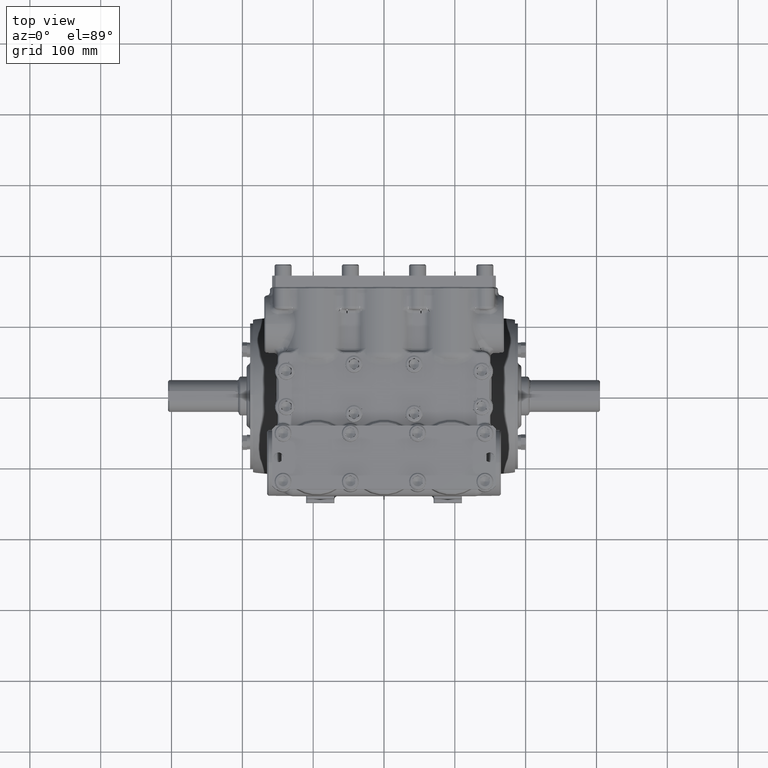
[diagram: clean part render]
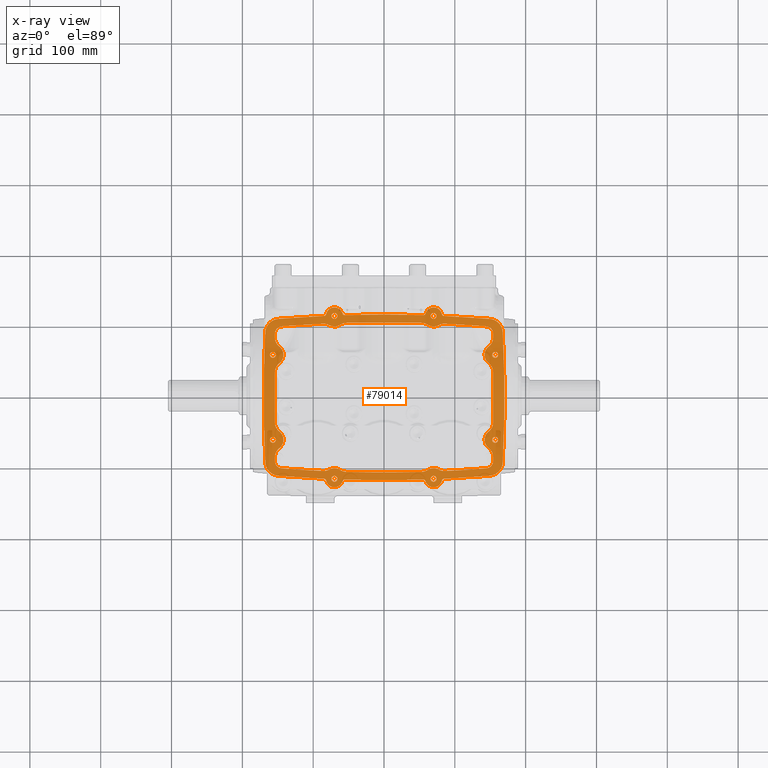
[diagram: x-ray — body ghosted, one internal face saturated and labeled with its STEP entity id]
A machine part, top view, then the same camera in x-ray: the body is ghosted and one INTERNAL B-rep face — a face not visible from any outside direction — is saturated and labeled: STEP entity #79014.
In plain terms, the highlighted planar face has unit normal (0, 0, 1).
Its self-contained STEP definition (entity closure, byte-faithful):
#168 = CARTESIAN_POINT ( 'NONE',  ( -5.472440944881891589, -1.417322834645668328, -4.527559055118468123 ) ) ;
#273 = CARTESIAN_POINT ( 'NONE',  ( -2.292606183085730276, -4.633729871843617509, -4.527559055118112852 ) ) ;
#478 = VERTEX_POINT ( 'NONE', #97336 ) ;
#553 = DIRECTION ( 'NONE',  ( -0.000000000000000000, -0.000000000000000000, -1.000000000000000000 ) ) ;
#692 = EDGE_CURVE ( 'NONE', #3909, #41677, #52940, .T. ) ;
#725 = CARTESIAN_POINT ( 'NONE',  ( 5.331292380570872957, -4.406861632343579416, -4.527559055118130615 ) ) ;
#870 = ORIENTED_EDGE ( 'NONE', *, *, #9384, .T. ) ;
#908 = CARTESIAN_POINT ( 'NONE',  ( -2.268484970017632385, -4.602983591615316783, -4.527559055118112852 ) ) ;
#1156 = ORIENTED_EDGE ( 'NONE', *, *, #1519, .T. ) ;
#1437 = CARTESIAN_POINT ( 'NONE',  ( -6.016220472440945599, 2.362204724409448620, -4.527559055118112852 ) ) ;
#1519 = EDGE_CURVE ( 'NONE', #102313, #41628, #111564, .T. ) ;
#1562 = CARTESIAN_POINT ( 'NONE',  ( -5.925075010475011617, 3.854462894930444250, -4.527559055118112852 ) ) ;
#1629 = CARTESIAN_POINT ( 'NONE',  ( 6.511138886662662273, 3.947298450261657266, -4.527572257922946264 ) ) ;
#1858 = AXIS2_PLACEMENT_3D ( 'NONE', #19498, #104157, #104768 ) ;
#1890 = CARTESIAN_POINT ( 'NONE',  ( 3.247658265458240656, -4.564931273926094768, -4.527559055118112852 ) ) ;
#1924 = VERTEX_POINT ( 'NONE', #110240 ) ;
#2085 = CARTESIAN_POINT ( 'NONE',  ( -5.974402732119556525, -4.353994531926278277, -4.527559055118112852 ) ) ;
#2144 = CARTESIAN_POINT ( 'NONE',  ( -2.298237550475097812, -4.645512712054865823, -4.527559055118112852 ) ) ;
#2222 = EDGE_CURVE ( 'NONE', #478, #38678, #32840, .T. ) ;
#2260 = CARTESIAN_POINT ( 'NONE',  ( 6.509336571322616116, -3.950634186851848195, -4.527579642659225634 ) ) ;
#2355 = AXIS2_PLACEMENT_3D ( 'NONE', #45428, #113696, #62549 ) ;
#2435 = DIRECTION ( 'NONE',  ( 1.000000000000000000, 0.000000000000000000, 0.000000000000000000 ) ) ;
#2816 = CIRCLE ( 'NONE', #67411, 0.5905511811023621549 ) ;
#2920 = CARTESIAN_POINT ( 'NONE',  ( -6.181102362204724976, 2.362204724409448620, -4.527559055118112852 ) ) ;
#3038 = CARTESIAN_POINT ( 'NONE',  ( 5.886072516958916978, 3.883459699004531362, -4.527559055118111964 ) ) ;
#3061 = AXIS2_PLACEMENT_3D ( 'NONE', #35874, #7407, #45944 ) ;
#3147 = EDGE_CURVE ( 'NONE', #51700, #97097, #20535, .T. ) ;
#3508 = VERTEX_POINT ( 'NONE', #116943 ) ;
#3854 = CARTESIAN_POINT ( 'NONE',  ( 2.184664243010236984, -4.572640839853370665, -4.527559055118109299 ) ) ;
#3909 = VERTEX_POINT ( 'NONE', #49193 ) ;
#4116 = EDGE_CURVE ( 'NONE', #62591, #116565, #85160, .T. ) ;
#4169 = DIRECTION ( 'NONE',  ( -0.000000000000000000, -0.000000000000000000, -1.000000000000000000 ) ) ;
#4293 = CARTESIAN_POINT ( 'NONE',  ( -0.7287620930716716128, -4.606298757135435018, -4.527559055118112852 ) ) ;
#4374 = CARTESIAN_POINT ( 'NONE',  ( 3.221356783803057677, -4.609584307767865319, -4.527559055118111964 ) ) ;
#4442 = DIRECTION ( 'NONE',  ( 1.000000000000000000, 0.000000000000000000, 0.000000000000000000 ) ) ;
#4458 = CARTESIAN_POINT ( 'NONE',  ( -5.700963357233980844, 3.943543637579796535, -4.527559055118112852 ) ) ;
#4741 = CARTESIAN_POINT ( 'NONE',  ( 6.096204545056369994, 4.313861218164448452, -4.527627350889201097 ) ) ;
#5004 = CARTESIAN_POINT ( 'NONE',  ( -6.234996395418238357, 4.244384796128675141, -4.527559055118112852 ) ) ;
#5058 = CARTESIAN_POINT ( 'NONE',  ( 2.755905511811022723, -4.527559055118110187, -4.527559055118111075 ) ) ;
#5092 = AXIS2_PLACEMENT_3D ( 'NONE', #77223, #50636, #20356 ) ;
#5190 = CARTESIAN_POINT ( 'NONE',  ( 6.016220472440945599, 2.362204724409448620, -4.527559055118112852 ) ) ;
#5370 = CARTESIAN_POINT ( 'NONE',  ( 6.599096292987787216, -3.641806516551120421, -4.527553270889840498 ) ) ;
#5541 = CARTESIAN_POINT ( 'NONE',  ( 2.301875005864905788, 4.658160533177150953, -4.527559055118111075 ) ) ;
#5857 = EDGE_CURVE ( 'NONE', #81561, #82375, #51968, .T. ) ;
#5909 = ORIENTED_EDGE ( 'NONE', *, *, #108172, .F. ) ;
#6044 = VERTEX_POINT ( 'NONE', #95675 ) ;
#6073 = CARTESIAN_POINT ( 'NONE',  ( -0.5120726337373385784, 4.604997277000427047, -4.527559055118099529 ) ) ;
#6098 = DIRECTION ( 'NONE',  ( 0.000000000000000000, -0.000000000000000000, 1.000000000000000000 ) ) ;
#6099 = DIRECTION ( 'NONE',  ( -1.000000000000000000, 0.000000000000000000, 0.000000000000000000 ) ) ;
#6673 = DIRECTION ( 'NONE',  ( 1.000000000000000000, 0.000000000000000000, -0.000000000000000000 ) ) ;
#6701 = CARTESIAN_POINT ( 'NONE',  ( -2.184673463171597607, 4.572659355340269904, -4.527559055118110187 ) ) ;
#6728 = EDGE_CURVE ( 'NONE', #35281, #102712, #24631, .T. ) ;
#6920 = CIRCLE ( 'NONE', #29138, 70.86614173228346658 ) ;
#7212 = EDGE_CURVE ( 'NONE', #11025, #54125, #104543, .T. ) ;
#7293 = DIRECTION ( 'NONE',  ( -0.000000000000000000, 0.000000000000000000, 1.000000000000000000 ) ) ;
#7407 = DIRECTION ( 'NONE',  ( -0.000000000000000000, 0.000000000000000000, 1.000000000000000000 ) ) ;
#7428 = DIRECTION ( 'NONE',  ( -1.000000000000000000, 0.000000000000000000, 0.000000000000000000 ) ) ;
#7430 = CARTESIAN_POINT ( 'NONE',  ( 2.292606183085730276, -4.633729871843617509, -4.527559055118112852 ) ) ;
#7646 = CARTESIAN_POINT ( 'NONE',  ( 64.17322834645669616, 0.000000000000000000, -4.527559055118112852 ) ) ;
#7696 = CARTESIAN_POINT ( 'NONE',  ( 3.049785051742431641, -4.015323256377824279, -4.527559055118112852 ) ) ;
#8063 = CARTESIAN_POINT ( 'NONE',  ( 2.301875005864905788, 4.658160533177150953, -4.527559055118111075 ) ) ;
#8072 = VERTEX_POINT ( 'NONE', #38813 ) ;
#8149 = CARTESIAN_POINT ( 'NONE',  ( 1.166750935531556276E-15, -4.606299212598425896, -4.527559055118112852 ) ) ;
#8287 = CARTESIAN_POINT ( 'NONE',  ( -2.755905511811022723, 4.527559055118110187, -4.527559055118111075 ) ) ;
#8312 = CARTESIAN_POINT ( 'NONE',  ( -4.179824503744859143, -4.488109018569321762, -4.527559055118112852 ) ) ;
#8431 = DIRECTION ( 'NONE',  ( -1.000000000000000000, 0.000000000000000000, 0.000000000000000000 ) ) ;
#8451 = CARTESIAN_POINT ( 'NONE',  ( 2.591023622047244679, -4.527559055118110187, -4.527559055118112852 ) ) ;
#8660 = DIRECTION ( 'NONE',  ( -0.000000000000000000, -0.000000000000000000, -1.000000000000000000 ) ) ;
#9070 = AXIS2_PLACEMENT_3D ( 'NONE', #45054, #102568, #36228 ) ;
#9080 = AXIS2_PLACEMENT_3D ( 'NONE', #124575, #37989, #74643 ) ;
#9168 = ORIENTED_EDGE ( 'NONE', *, *, #56125, .T. ) ;
#9174 = CIRCLE ( 'NONE', #120220, 0.1648818897637788772 ) ;
#9234 = CARTESIAN_POINT ( 'NONE',  ( 6.550717241165086691, 3.855181297312167299, -4.527559059533915686 ) ) ;
#9333 = ORIENTED_EDGE ( 'NONE', *, *, #28202, .T. ) ;
#9384 = EDGE_CURVE ( 'NONE', #78371, #107066, #59606, .T. ) ;
#9540 = CARTESIAN_POINT ( 'NONE',  ( -3.267558620430933480, -4.547873311935165752, -4.527559055118112852 ) ) ;
#9589 = CARTESIAN_POINT ( 'NONE',  ( -2.197803887720153337, 4.572250865720856261, -4.527559055118112852 ) ) ;
#9860 = AXIS2_PLACEMENT_3D ( 'NONE', #36265, #56481, #8431 ) ;
#9916 = CARTESIAN_POINT ( 'NONE',  ( 2.298237550475097812, -4.645512712054865823, -4.527559055118112852 ) ) ;
#10010 = EDGE_CURVE ( 'NONE', #48812, #33600, #69158, .T. ) ;
#10251 = EDGE_CURVE ( 'NONE', #18262, #73159, #65803, .T. ) ;
#10514 = VERTEX_POINT ( 'NONE', #114702 ) ;
#10724 = AXIS2_PLACEMENT_3D ( 'NONE', #122629, #63246, #82822 ) ;
#10830 = CARTESIAN_POINT ( 'NONE',  ( 3.867905976239107257, -4.501470464485223921, -4.527559055118138609 ) ) ;
#10888 = ORIENTED_EDGE ( 'NONE', *, *, #32311, .F. ) ;
#10955 = CARTESIAN_POINT ( 'NONE',  ( -2.090737782238187847, -3.551569976521173455, -4.527559055118468123 ) ) ;
#11025 = VERTEX_POINT ( 'NONE', #60440 ) ;
#11045 = CARTESIAN_POINT ( 'NONE',  ( -6.053961767976193009, 3.648502635165158381, -4.527559055118112852 ) ) ;
#11107 = CARTESIAN_POINT ( 'NONE',  ( -5.879417847965250132, 4.362021250421312502, -4.527559055118116405 ) ) ;
#11113 = CARTESIAN_POINT ( 'NONE',  ( 6.544981192962105787, 3.870303017804972878, -4.527559337738292555 ) ) ;
#11163 = B_SPLINE_CURVE_WITH_KNOTS ( 'NONE', 3,
 ( #54124, #92645, #6073, #35800, #16202, #55377, #54742, #93911, #6701 ),
 .UNSPECIFIED., .F., .F.,
 ( 4, 1, 1, 1, 1, 1, 4 ),
 ( 0.000000000000000000, 0.08065781229441630618, 0.1231526603624849697, 0.1535797776903936596, 0.2281809857477444525, 0.2729276204612534618, 0.2791431374105662888 ),
 .UNSPECIFIED. ) ;
#11302 = CIRCLE ( 'NONE', #63779, 0.5905511811023627100 ) ;
#11389 = CARTESIAN_POINT ( 'NONE',  ( 3.239321566170551669, -4.574884123233616151, -4.527559055118111964 ) ) ;
#11436 = DIRECTION ( 'NONE',  ( -1.000000000000000000, 0.000000000000000000, 0.000000000000000000 ) ) ;
#11756 = CARTESIAN_POINT ( 'NONE',  ( 6.379233032900245348, -4.125357149080468133, -4.527559056982173757 ) ) ;
#11919 = CARTESIAN_POINT ( 'NONE',  ( -5.472440944881890701, 3.307086614173228689, -4.527559055118468123 ) ) ;
#12375 = CARTESIAN_POINT ( 'NONE',  ( 6.556511858453983876, -3.839324867930100194, -4.527559068162958056 ) ) ;
#12706 = CARTESIAN_POINT ( 'NONE',  ( 4.639603684136446304, -4.456337840621012347, -4.527559055118117293 ) ) ;
#12743 = CIRCLE ( 'NONE', #71269, 0.1648818897637794323 ) ;
#12913 = CARTESIAN_POINT ( 'NONE',  ( 6.600560107624472650, -3.616754329098800458, -4.527559055118112852 ) ) ;
#12922 = CARTESIAN_POINT ( 'NONE',  ( -5.750264282932046278, 3.939564633213970435, -4.527559055118112852 ) ) ;
#13260 = CARTESIAN_POINT ( 'NONE',  ( 3.328922505631730644, -4.528106265104127282, -4.527559055118120845 ) ) ;
#13360 = VERTEX_POINT ( 'NONE', #85957 ) ;
#13633 = CARTESIAN_POINT ( 'NONE',  ( 6.600016752269424636, -3.627386966863352935, -4.527559055118112852 ) ) ;
#13956 = ORIENTED_EDGE ( 'NONE', *, *, #54256, .T. ) ;
#14252 = VERTEX_POINT ( 'NONE', #58284 ) ;
#14299 = EDGE_CURVE ( 'NONE', #35281, #88522, #106171, .T. ) ;
#14411 = VERTEX_POINT ( 'NONE', #114838 ) ;
#14414 = EDGE_CURVE ( 'NONE', #88522, #32721, #83552, .T. ) ;
#14518 = DIRECTION ( 'NONE',  ( -0.000000000000000000, -0.000000000000000000, -1.000000000000000000 ) ) ;
#14983 = VERTEX_POINT ( 'NONE', #89696 ) ;
#15013 = CIRCLE ( 'NONE', #39191, 0.5905511811023621549 ) ;
#15061 = DIRECTION ( 'NONE',  ( -2.792307984086930752E-16, -1.000000000000000000, 0.000000000000000000 ) ) ;
#15111 = CARTESIAN_POINT ( 'NONE',  ( -5.879417847965250132, 4.362021250421312502, -4.527559055118116405 ) ) ;
#15298 = DIRECTION ( 'NONE',  ( -0.000000000000000000, -0.000000000000000000, -1.000000000000000000 ) ) ;
#15384 = CARTESIAN_POINT ( 'NONE',  ( -5.923858486906225629, -3.852503442952278867, -4.527559055118112852 ) ) ;
#15488 = CARTESIAN_POINT ( 'NONE',  ( 6.592191961129600486, -3.700800128886814644, -4.527541042074453514 ) ) ;
#15737 = CIRCLE ( 'NONE', #17837, 0.1648818897637794323 ) ;
#15765 = CARTESIAN_POINT ( 'NONE',  ( 5.472440944881890701, 3.307086614173228689, -4.527559055118468123 ) ) ;
#15789 = AXIS2_PLACEMENT_3D ( 'NONE', #85863, #15298, #101234 ) ;
#16202 = CARTESIAN_POINT ( 'NONE',  ( -1.294036768837029339, 4.594925701117969830, -4.527559055118116405 ) ) ;
#16215 = CARTESIAN_POINT ( 'NONE',  ( 6.062992125984251857, -1.417322834645665663, -4.527559055118112852 ) ) ;
#16262 = ORIENTED_EDGE ( 'NONE', *, *, #65719, .F. ) ;
#16348 = CARTESIAN_POINT ( 'NONE',  ( -6.181102362204724976, 2.362204724409448620, -4.527559055118112852 ) ) ;
#16593 = CARTESIAN_POINT ( 'NONE',  ( 6.345984251968504353, 2.362204724409448620, -4.527559055118112852 ) ) ;
#17045 = AXIS2_PLACEMENT_3D ( 'NONE', #124935, #8660, #104704 ) ;
#17571 = CARTESIAN_POINT ( 'NONE',  ( 2.301868522158472707, -4.658137990739988687, -4.527559055118111075 ) ) ;
#17605 = DIRECTION ( 'NONE',  ( -0.000000000000000000, -0.000000000000000000, -1.000000000000000000 ) ) ;
#17690 = DIRECTION ( 'NONE',  ( 1.000000000000000000, 0.000000000000000000, 0.000000000000000000 ) ) ;
#17837 = AXIS2_PLACEMENT_3D ( 'NONE', #102177, #54151, #6099 ) ;
#18051 = ORIENTED_EDGE ( 'NONE', *, *, #27336, .F. ) ;
#18262 = VERTEX_POINT ( 'NONE', #110614 ) ;
#18434 = EDGE_CURVE ( 'NONE', #84045, #14411, #12743, .T. ) ;
#18453 = CARTESIAN_POINT ( 'NONE',  ( -5.029985590025759734, -4.432739827468786586, -4.527559055118112852 ) ) ;
#18473 = CARTESIAN_POINT ( 'NONE',  ( -2.247385770705629948, 4.587606729715097309, -4.527559055118112852 ) ) ;
#18505 = CARTESIAN_POINT ( 'NONE',  ( -2.423321647024647696, 4.039564515819613177, -4.527559055118112852 ) ) ;
#18712 = CARTESIAN_POINT ( 'NONE',  ( 5.879406437470317215, -4.362012849815289250, -4.527559055118119957 ) ) ;
#18825 = ORIENTED_EDGE ( 'NONE', *, *, #70275, .F. ) ;
#18973 = AXIS2_PLACEMENT_3D ( 'NONE', #85339, #20860, #59412 ) ;
#19023 = CARTESIAN_POINT ( 'NONE',  ( -3.218713605858714466, 4.622475410320126876, -4.527559055118111075 ) ) ;
#19376 = CARTESIAN_POINT ( 'NONE',  ( 6.551703232239094454, 3.852550415445902487, -4.527559054626294710 ) ) ;
#19498 = CARTESIAN_POINT ( 'NONE',  ( 6.181102362204724976, 2.362204724409448620, -4.527559055118112852 ) ) ;
#19687 = CARTESIAN_POINT ( 'NONE',  ( -6.062992125984250968, 3.913390656378558319, -4.527559055118112852 ) ) ;
#19983 = CARTESIAN_POINT ( 'NONE',  ( 6.577697507010606515, 3.772461727793728681, -4.527544972615009655 ) ) ;
#20054 = CARTESIAN_POINT ( 'NONE',  ( 6.053982765578660441, -3.648366023871907338, -4.527559055118112852 ) ) ;
#20260 = CARTESIAN_POINT ( 'NONE',  ( -3.267626252040976897, 4.547850408202440242, -4.527559055118112852 ) ) ;
#20287 = EDGE_CURVE ( 'NONE', #13360, #22077, #89585, .T. ) ;
#20324 = CARTESIAN_POINT ( 'NONE',  ( 5.879406437470317215, -4.362012849815289250, -4.527559055118119957 ) ) ;
#20356 = DIRECTION ( 'NONE',  ( -1.000000000000000000, 0.000000000000000000, 0.000000000000000000 ) ) ;
#20535 = B_SPLINE_CURVE_WITH_KNOTS ( 'NONE', 3,
 ( #88677, #2085, #69719, #77319, #79199, #87433, #68466, #28666, #48223, #86794 ),
 .UNSPECIFIED., .F., .F.,
 ( 4, 2, 2, 2, 4 ),
 ( 0.000000000000000000, 0.2500000000000000000, 0.5000000000000000000, 0.7500000000000000000, 1.000000000000000000 ),
 .UNSPECIFIED. ) ;
#20681 = EDGE_CURVE ( 'NONE', #8072, #119079, #6920, .T. ) ;
#20684 = CARTESIAN_POINT ( 'NONE',  ( 5.700963357233979067, -3.943543637579805416, -4.527559055118112852 ) ) ;
#20860 = DIRECTION ( 'NONE',  ( 0.000000000000000000, 0.000000000000000000, 1.000000000000000000 ) ) ;
#21142 = CARTESIAN_POINT ( 'NONE',  ( -2.277591294793437804, -4.612274044014545105, -4.527559055118112852 ) ) ;
#21249 = ORIENTED_EDGE ( 'NONE', *, *, #69790, .T. ) ;
#21474 = ORIENTED_EDGE ( 'NONE', *, *, #102677, .T. ) ;
#21665 = EDGE_CURVE ( 'NONE', #103795, #34063, #41403, .T. ) ;
#21794 = CARTESIAN_POINT ( 'NONE',  ( -5.700963357233980844, 3.943543637579796535, -4.527559055118112852 ) ) ;
#22012 = CARTESIAN_POINT ( 'NONE',  ( -3.278698252851846906, -4.541144888009382541, -4.527559055118112852 ) ) ;
#22077 = VERTEX_POINT ( 'NONE', #59802 ) ;
#22266 = CARTESIAN_POINT ( 'NONE',  ( -6.062992125984250968, 3.913390656378558319, -4.527559055118112852 ) ) ;
#22492 = CARTESIAN_POINT ( 'NONE',  ( 6.378821201066650737, -4.125781773001865105, -4.527559060332112750 ) ) ;
#22710 = DIRECTION ( 'NONE',  ( -0.000000000000000000, -0.000000000000000000, 1.000000000000000000 ) ) ;
#23041 = VERTEX_POINT ( 'NONE', #83390 ) ;
#23377 = CARTESIAN_POINT ( 'NONE',  ( -6.498306810035217040, 3.978169882527636148, -4.527559055118111964 ) ) ;
#23575 = EDGE_CURVE ( 'NONE', #64801, #32150, #95571, .T. ) ;
#23658 = VERTEX_POINT ( 'NONE', #39716 ) ;
#23705 = CARTESIAN_POINT ( 'NONE',  ( 5.826771653543307394, 1.889763779527558807, -4.527559055118112852 ) ) ;
#23821 = CARTESIAN_POINT ( 'NONE',  ( -3.343664591673726871, 3.503087457637528157, -4.527559055118468123 ) ) ;
#23993 = CARTESIAN_POINT ( 'NONE',  ( 5.472440944881890701, 1.417322834645668328, -4.527559055118468123 ) ) ;
#24176 = CIRCLE ( 'NONE', #94785, 0.1648818897637788772 ) ;
#24292 = AXIS2_PLACEMENT_3D ( 'NONE', #76650, #96838, #28629 ) ;
#24299 = VERTEX_POINT ( 'NONE', #118980 ) ;
#24631 = B_SPLINE_CURVE_WITH_KNOTS ( 'NONE', 3,
 ( #100964, #4293, #60590, #63055 ),
 .UNSPECIFIED., .F., .F.,
 ( 4, 4 ),
 ( 0.000000000000000000, 0.3324189983859203168 ),
 .UNSPECIFIED. ) ;
#24701 = AXIS2_PLACEMENT_3D ( 'NONE', #105274, #6098, #56036 ) ;
#24833 = CARTESIAN_POINT ( 'NONE',  ( 5.826771653543308283, -1.889763779527558141, -4.527559055118112852 ) ) ;
#25123 = DIRECTION ( 'NONE',  ( 1.000000000000000000, 0.000000000000000000, 0.000000000000000000 ) ) ;
#25149 = CARTESIAN_POINT ( 'NONE',  ( 2.292666783928119845, 4.633848129638076685, -4.527559055118112852 ) ) ;
#25282 = CARTESIAN_POINT ( 'NONE',  ( 2.755905511811023612, 4.527559055118110187, -4.527559055118112852 ) ) ;
#25311 = CARTESIAN_POINT ( 'NONE',  ( 2.920787401574802100, 4.527559055118110187, -4.527559055118112852 ) ) ;
#25662 = DIRECTION ( 'NONE',  ( 1.000000000000000000, 0.000000000000000000, 0.000000000000000000 ) ) ;
#25993 = CARTESIAN_POINT ( 'NONE',  ( 0.7288146890678441903, 4.606298740546600712, -4.527559055118112852 ) ) ;
#25997 = ORIENTED_EDGE ( 'NONE', *, *, #88214, .T. ) ;
#26115 = EDGE_LOOP ( 'NONE', ( #102450, #30084, #83146, #30659, #18051, #30195, #30197, #18825, #31115, #97278, #119389, #111333, #110399, #88931, #45540, #116960, #117971, #67456, #105488, #86599, #81481, #32710, #870, #78408, #28595, #103743, #36971, #26531, #9168, #44599, #41195, #34868, #41625, #67628, #45042, #97758, #34485, #82349, #45101, #25997 ) ) ;
#26280 = FACE_BOUND ( 'NONE', #111974, .T. ) ;
#26498 = CARTESIAN_POINT ( 'NONE',  ( 6.062992125984250968, 3.913390656378558319, -4.527559055118112852 ) ) ;
#26531 = ORIENTED_EDGE ( 'NONE', *, *, #112136, .T. ) ;
#26557 = DIRECTION ( 'NONE',  ( 1.000000000000000000, 0.000000000000000000, 0.000000000000000000 ) ) ;
#26672 = EDGE_CURVE ( 'NONE', #82849, #32150, #108655, .T. ) ;
#26915 = EDGE_CURVE ( 'NONE', #11025, #104514, #96624, .T. ) ;
#27219 = EDGE_CURVE ( 'NONE', #109695, #43420, #113058, .T. ) ;
#27231 = AXIS2_PLACEMENT_3D ( 'NONE', #54763, #74339, #83204 ) ;
#27336 = EDGE_CURVE ( 'NONE', #33600, #23658, #70404, .T. ) ;
#27339 = CARTESIAN_POINT ( 'NONE',  ( -2.292666783928119845, 4.633848129638076685, -4.527559055118112852 ) ) ;
#27421 = CIRCLE ( 'NONE', #43528, 0.1648818897637788772 ) ;
#27426 = CARTESIAN_POINT ( 'NONE',  ( 3.218713605858714466, 4.622475410320126876, -4.527559055118111075 ) ) ;
#27604 = CARTESIAN_POINT ( 'NONE',  ( -2.108307007299125679, 4.141859752675342676, -4.527559055118112852 ) ) ;
#27787 = CARTESIAN_POINT ( 'NONE',  ( 2.755905511811023612, -4.527559055118110187, -4.527559055118112852 ) ) ;
#27886 = DIRECTION ( 'NONE',  ( 0.000000000000000000, 0.000000000000000000, 1.000000000000000000 ) ) ;
#27899 = EDGE_CURVE ( 'NONE', #34679, #81561, #40607, .T. ) ;
#28202 = EDGE_CURVE ( 'NONE', #66846, #30684, #52348, .T. ) ;
#28206 = CARTESIAN_POINT ( 'NONE',  ( 6.412267417697667504, 4.089206622872432639, -4.527565893692295340 ) ) ;
#28473 = CARTESIAN_POINT ( 'NONE',  ( -3.315793298557895508, 4.528736566498901439, -4.527559055118112852 ) ) ;
#28595 = ORIENTED_EDGE ( 'NONE', *, *, #20681, .T. ) ;
#28620 = EDGE_LOOP ( 'NONE', ( #5909, #89858, #98057, #21249, #53823, #110325, #10888, #75842, #81627, #1156, #53708, #41674, #116079, #117151, #51372, #95434, #31300, #72535, #91641, #111062, #61850, #13956, #49348, #95274, #84202, #45085 ) ) ;
#28629 = DIRECTION ( 'NONE',  ( -1.000000000000000000, 0.000000000000000000, 0.000000000000000000 ) ) ;
#28641 = CARTESIAN_POINT ( 'NONE',  ( 3.267626252040976897, 4.547850408202440242, -4.527559055118112852 ) ) ;
#28666 = CARTESIAN_POINT ( 'NONE',  ( -6.574229186009348247, -3.803469992005312772, -4.527559055118112852 ) ) ;
#28728 = CARTESIAN_POINT ( 'NONE',  ( -2.247303828480326615, -4.587535846743799439, -4.527559055118112852 ) ) ;
#28761 = ORIENTED_EDGE ( 'NONE', *, *, #93812, .F. ) ;
#29138 = AXIS2_PLACEMENT_3D ( 'NONE', #61763, #31447, #100281 ) ;
#29329 = EDGE_CURVE ( 'NONE', #124001, #57147, #96887, .T. ) ;
#29466 = CARTESIAN_POINT ( 'NONE',  ( 6.599436787690049933, 3.637071402511120155, -4.527552228423471270 ) ) ;
#29645 = EDGE_LOOP ( 'NONE', ( #28761, #47975 ) ) ;
#29774 = CARTESIAN_POINT ( 'NONE',  ( -3.226007977977330743, -4.597497612327096306, -4.527559055118112852 ) ) ;
#29811 = CARTESIAN_POINT ( 'NONE',  ( 3.488699140663553244, -4.520580502336806639, -4.527559055118133280 ) ) ;
#29839 = CARTESIAN_POINT ( 'NONE',  ( 0.2620379937659005343, -4.606299212598425008, -4.527559055118111964 ) ) ;
#30081 = CARTESIAN_POINT ( 'NONE',  ( 6.600148714162009433, 3.624804692439511200, -4.527559055118112852 ) ) ;
#30084 = ORIENTED_EDGE ( 'NONE', *, *, #36601, .F. ) ;
#30098 = AXIS2_PLACEMENT_3D ( 'NONE', #7646, #27886, #84752 ) ;
#30195 = ORIENTED_EDGE ( 'NONE', *, *, #10010, .F. ) ;
#30197 = ORIENTED_EDGE ( 'NONE', *, *, #82697, .F. ) ;
#30495 = DIRECTION ( 'NONE',  ( -2.792307984086930752E-16, -1.000000000000000000, 0.000000000000000000 ) ) ;
#30659 = ORIENTED_EDGE ( 'NONE', *, *, #59462, .F. ) ;
#30684 = VERTEX_POINT ( 'NONE', #8451 ) ;
#30715 = CARTESIAN_POINT ( 'NONE',  ( 6.561775086568054860, 3.824112742090254979, -4.527556538595037594 ) ) ;
#31115 = ORIENTED_EDGE ( 'NONE', *, *, #63818, .T. ) ;
#31267 = CARTESIAN_POINT ( 'NONE',  ( 6.600559661187499039, 3.616763065107670982, -4.527559055118112852 ) ) ;
#31300 = ORIENTED_EDGE ( 'NONE', *, *, #97116, .F. ) ;
#31339 = CARTESIAN_POINT ( 'NONE',  ( -5.499118577824457788, 4.393131791324928592, -4.527559055118116405 ) ) ;
#31360 = CARTESIAN_POINT ( 'NONE',  ( 6.483448187064996482, -3.994179187732508574, -4.527589218613334410 ) ) ;
#31447 = DIRECTION ( 'NONE',  ( 0.000000000000000000, -0.000000000000000000, 1.000000000000000000 ) ) ;
#31501 = CARTESIAN_POINT ( 'NONE',  ( -6.062992125984251857, 1.417322834645670104, -4.527559055118112852 ) ) ;
#31881 = CARTESIAN_POINT ( 'NONE',  ( 1.166750935531556276E-15, 4.606299212598425008, -4.527559055118112852 ) ) ;
#31973 = CARTESIAN_POINT ( 'NONE',  ( 5.879406437470317215, -4.362012849815289250, -4.527559055118119957 ) ) ;
#32110 = CARTESIAN_POINT ( 'NONE',  ( -3.328922505631730644, -4.528106265104127282, -4.527559055118120845 ) ) ;
#32116 = CARTESIAN_POINT ( 'NONE',  ( 6.053961767976193009, 3.648502635165158381, -4.527559055118112852 ) ) ;
#32150 = VERTEX_POINT ( 'NONE', #109774 ) ;
#32292 = CARTESIAN_POINT ( 'NONE',  ( 3.328922505631730644, -4.528106265104127282, -4.527559055118120845 ) ) ;
#32311 = EDGE_CURVE ( 'NONE', #82260, #54125, #11163, .T. ) ;
#32608 = CIRCLE ( 'NONE', #50427, 0.5905511811023621549 ) ;
#32710 = ORIENTED_EDGE ( 'NONE', *, *, #34013, .T. ) ;
#32721 = VERTEX_POINT ( 'NONE', #64526 ) ;
#32840 = B_SPLINE_CURVE_WITH_KNOTS ( 'NONE', 3,
 ( #38901, #69848, #95770, #59132 ),
 .UNSPECIFIED., .F., .F.,
 ( 4, 4 ),
 ( 0.5066743124741042159, 0.8957208197921345816 ),
 .UNSPECIFIED. ) ;
#33600 = VERTEX_POINT ( 'NONE', #119586 ) ;
#33625 = CIRCLE ( 'NONE', #55914, 0.5905511811023621549 ) ;
#33975 = CARTESIAN_POINT ( 'NONE',  ( 6.015946701117344197, 3.739446117129830771, -4.527559055118112852 ) ) ;
#34013 = EDGE_CURVE ( 'NONE', #41677, #78371, #2816, .T. ) ;
#34063 = VERTEX_POINT ( 'NONE', #77650 ) ;
#34485 = ORIENTED_EDGE ( 'NONE', *, *, #99815, .T. ) ;
#34679 = VERTEX_POINT ( 'NONE', #54627 ) ;
#34807 = CARTESIAN_POINT ( 'NONE',  ( 6.062992125984250968, 3.913390656378558319, -4.527559055118112852 ) ) ;
#34868 = ORIENTED_EDGE ( 'NONE', *, *, #105044, .T. ) ;
#34956 = CARTESIAN_POINT ( 'NONE',  ( -5.750346958885537596, -3.939557960560768013, -4.527559055118113740 ) ) ;
#35068 = CARTESIAN_POINT ( 'NONE',  ( 6.562460399866333560, -3.821875839137750308, -4.527558294064161437 ) ) ;
#35172 = CIRCLE ( 'NONE', #85610, 0.5905511811023621549 ) ;
#35245 = CARTESIAN_POINT ( 'NONE',  ( 2.277635868427436261, 4.612339371012142308, -4.527559055118111964 ) ) ;
#35281 = VERTEX_POINT ( 'NONE', #8149 ) ;
#35323 = CARTESIAN_POINT ( 'NONE',  ( -6.311178901938052199, 4.189708015627557458, -4.527559055118113740 ) ) ;
#35368 = DIRECTION ( 'NONE',  ( 0.000000000000000000, -1.000000000000000000, 0.000000000000000000 ) ) ;
#35800 = CARTESIAN_POINT ( 'NONE',  ( -0.9086231401177150557, 4.600676163079257641, -4.527559055118095976 ) ) ;
#35874 = CARTESIAN_POINT ( 'NONE',  ( 6.181102362204724976, -2.362204724409448620, -4.527559055118112852 ) ) ;
#35924 = CARTESIAN_POINT ( 'NONE',  ( -5.826771653543307394, 2.834645669291338876, -4.527559055118112852 ) ) ;
#36013 = DIRECTION ( 'NONE',  ( 0.000000000000000000, 1.000000000000000000, 0.000000000000000000 ) ) ;
#36042 = CARTESIAN_POINT ( 'NONE',  ( -3.343664591673839670, -3.503087457637538371, -4.527559055118468123 ) ) ;
#36228 = DIRECTION ( 'NONE',  ( 1.000000000000000000, 0.000000000000000000, 0.000000000000000000 ) ) ;
#36236 = DIRECTION ( 'NONE',  ( 1.000000000000000000, 0.000000000000000000, 0.000000000000000000 ) ) ;
#36265 = CARTESIAN_POINT ( 'NONE',  ( 0.000000000000000000, 66.69291338582677042, -4.527559055118112852 ) ) ;
#36386 = FACE_BOUND ( 'NONE', #46090, .T. ) ;
#36601 = EDGE_CURVE ( 'NONE', #14983, #1924, #91712, .T. ) ;
#36971 = ORIENTED_EDGE ( 'NONE', *, *, #48857, .T. ) ;
#36987 = EDGE_CURVE ( 'NONE', #111396, #69513, #101920, .T. ) ;
#37516 = CARTESIAN_POINT ( 'NONE',  ( 3.226051720084227359, 4.597422418245580289, -4.527559055118112852 ) ) ;
#37697 = CARTESIAN_POINT ( 'NONE',  ( 6.432125168775547408, 4.065374774621711040, -4.527572777906733847 ) ) ;
#37884 = DIRECTION ( 'NONE',  ( -0.000000000000000000, -0.000000000000000000, -1.000000000000000000 ) ) ;
#37989 = DIRECTION ( 'NONE',  ( -0.000000000000000000, -0.000000000000000000, -1.000000000000000000 ) ) ;
#38279 = DIRECTION ( 'NONE',  ( -0.000000000000000000, -0.000000000000000000, -1.000000000000000000 ) ) ;
#38385 = CARTESIAN_POINT ( 'NONE',  ( 5.884895549513077029, -3.881500344081061815, -4.527559055118114628 ) ) ;
#38389 = DIRECTION ( 'NONE',  ( -1.000000000000000000, 0.000000000000000000, 0.000000000000000000 ) ) ;
#38610 = VERTEX_POINT ( 'NONE', #35924 ) ;
#38678 = VERTEX_POINT ( 'NONE', #91398 ) ;
#38813 = CARTESIAN_POINT ( 'NONE',  ( -3.371762613452496726, 4.092969817666639365, -4.527559055118112852 ) ) ;
#38831 = CARTESIAN_POINT ( 'NONE',  ( -2.184664243010236984, -4.572640839853370665, -4.527559055118109299 ) ) ;
#38901 = CARTESIAN_POINT ( 'NONE',  ( 3.328915999479604704, 4.528127923794316168, -4.527559055118110187 ) ) ;
#39071 = CARTESIAN_POINT ( 'NONE',  ( -3.328922505631730644, -4.528106265104127282, -4.527559055118120845 ) ) ;
#39191 = AXIS2_PLACEMENT_3D ( 'NONE', #39254, #58846, #11436 ) ;
#39254 = CARTESIAN_POINT ( 'NONE',  ( 3.343664591673726871, 3.503087457637528157, -4.527559055118468123 ) ) ;
#39266 = CIRCLE ( 'NONE', #97790, 0.1648818897637788772 ) ;
#39337 = AXIS2_PLACEMENT_3D ( 'NONE', #36042, #113114, #26557 ) ;
#39562 = CARTESIAN_POINT ( 'NONE',  ( -3.399638655963684641, 4.524794159226809498, -4.527559055118106635 ) ) ;
#39568 = CARTESIAN_POINT ( 'NONE',  ( 6.564627972504243125, 3.815286499379716201, -4.527554763853582465 ) ) ;
#39578 = CARTESIAN_POINT ( 'NONE',  ( 6.364246364710533399, -4.140463639907071780, -4.527560321964006818 ) ) ;
#39716 = CARTESIAN_POINT ( 'NONE',  ( 3.371762613452611301, -4.092969817666648247, -4.527559055118112852 ) ) ;
#40169 = CARTESIAN_POINT ( 'NONE',  ( 6.485254260704533813, 3.991344752465789014, -4.527583076694361885 ) ) ;
#40183 = CARTESIAN_POINT ( 'NONE',  ( 6.096134468620435065, -4.313878694770220790, -4.527627265910528997 ) ) ;
#40607 = B_SPLINE_CURVE_WITH_KNOTS ( 'NONE', 3,
 ( #32292, #29811, #10830, #12706, #725, #108740, #20324 ),
 .UNSPECIFIED., .F., .F.,
 ( 4, 1, 1, 1, 4 ),
 ( 0.3348998987274703909, 0.3816615192807322754, 0.4455869205094645236, 0.5591388548532691960, 0.5820483711585795472 ),
 .UNSPECIFIED. ) ;
#40725 = CARTESIAN_POINT ( 'NONE',  ( -5.990178230626718836, 3.780615483094690976, -4.527559055118112852 ) ) ;
#40788 = CARTESIAN_POINT ( 'NONE',  ( -3.328915999479604704, 4.528127923794316168, -4.527559055118110187 ) ) ;
#40927 = DIRECTION ( 'NONE',  ( -0.000000000000000000, -0.000000000000000000, -1.000000000000000000 ) ) ;
#41045 = VERTEX_POINT ( 'NONE', #111628 ) ;
#41061 = CARTESIAN_POINT ( 'NONE',  ( 3.278698252851846906, -4.541144888009382541, -4.527559055118112852 ) ) ;
#41107 = DIRECTION ( 'NONE',  ( -2.792307984086930752E-16, -1.000000000000000000, 0.000000000000000000 ) ) ;
#41195 = ORIENTED_EDGE ( 'NONE', *, *, #103009, .T. ) ;
#41265 = CARTESIAN_POINT ( 'NONE',  ( 6.062992125984250968, 3.307086614173228689, -4.527559055118112852 ) ) ;
#41403 = CIRCLE ( 'NONE', #105991, 0.1648818897637794323 ) ;
#41465 = DIRECTION ( 'NONE',  ( -0.000000000000000000, -0.000000000000000000, -1.000000000000000000 ) ) ;
#41625 = ORIENTED_EDGE ( 'NONE', *, *, #87038, .F. ) ;
#41628 = VERTEX_POINT ( 'NONE', #98592 ) ;
#41674 = ORIENTED_EDGE ( 'NONE', *, *, #2222, .T. ) ;
#41677 = VERTEX_POINT ( 'NONE', #27604 ) ;
#41689 = CARTESIAN_POINT ( 'NONE',  ( 3.315798968499322097, -4.528709272618551829, -4.527559055118112852 ) ) ;
#41979 = CARTESIAN_POINT ( 'NONE',  ( 3.371762613452496726, 4.092969817666639365, -4.527559055118112852 ) ) ;
#42159 = CARTESIAN_POINT ( 'NONE',  ( 5.472440944881891589, -3.307086614173229577, -4.527559055118468123 ) ) ;
#42185 = CARTESIAN_POINT ( 'NONE',  ( 5.797170541048183523, 3.926740243256582996, -4.527559055118112852 ) ) ;
#42643 = CARTESIAN_POINT ( 'NONE',  ( 5.964729695128633935, 4.351392838085758719, -4.527578855211051412 ) ) ;
#42806 = DIRECTION ( 'NONE',  ( 0.000000000000000000, 0.000000000000000000, 1.000000000000000000 ) ) ;
#43249 = DIRECTION ( 'NONE',  ( -1.000000000000000000, 0.000000000000000000, 0.000000000000000000 ) ) ;
#43268 = CARTESIAN_POINT ( 'NONE',  ( 5.921433796080105338, 4.358415259851848411, -4.527559054988424592 ) ) ;
#43420 = VERTEX_POINT ( 'NONE', #16215 ) ;
#43447 = CARTESIAN_POINT ( 'NONE',  ( 6.062992125984251857, 1.417322834645670104, -4.527559055118112852 ) ) ;
#43486 = LINE ( 'NONE', #109867, #57401 ) ;
#43528 = AXIS2_PLACEMENT_3D ( 'NONE', #115880, #106411, #49524 ) ;
#43598 = DIRECTION ( 'NONE',  ( 0.000000000000000000, 1.000000000000000000, 0.000000000000000000 ) ) ;
#43805 = CARTESIAN_POINT ( 'NONE',  ( -5.884895549513077029, -3.881500344081061815, -4.527559055118114628 ) ) ;
#43870 = CARTESIAN_POINT ( 'NONE',  ( -6.181102362204724976, -2.362204724409448620, -4.527559055118112852 ) ) ;
#44141 = CARTESIAN_POINT ( 'NONE',  ( -6.194471909750069116, 4.268243044349713244, -4.527559055118112852 ) ) ;
#44148 = CARTESIAN_POINT ( 'NONE',  ( -3.218713605858714466, 4.622475410320126876, -4.527559055118111075 ) ) ;
#44400 = CARTESIAN_POINT ( 'NONE',  ( -6.053982765578660441, -3.648366023871907338, -4.527559055118112852 ) ) ;
#44573 = AXIS2_PLACEMENT_3D ( 'NONE', #42159, #40927, #88966 ) ;
#44588 = DIRECTION ( 'NONE',  ( 1.000000000000000000, 0.000000000000000000, 0.000000000000000000 ) ) ;
#44599 = ORIENTED_EDGE ( 'NONE', *, *, #64340, .T. ) ;
#44645 = CIRCLE ( 'NONE', #81037, 0.5905511811023621549 ) ;
#44891 = VERTEX_POINT ( 'NONE', #100052 ) ;
#45042 = ORIENTED_EDGE ( 'NONE', *, *, #52090, .T. ) ;
#45054 = CARTESIAN_POINT ( 'NONE',  ( 2.755905511811023612, 4.527559055118110187, -4.527559055118112852 ) ) ;
#45085 = ORIENTED_EDGE ( 'NONE', *, *, #3147, .T. ) ;
#45101 = ORIENTED_EDGE ( 'NONE', *, *, #50110, .F. ) ;
#45316 = CARTESIAN_POINT ( 'NONE',  ( 2.235757232046924781, 4.581764804036616567, -4.527559055118112852 ) ) ;
#45428 = CARTESIAN_POINT ( 'NONE',  ( 2.755905511811023612, -4.527559055118110187, -4.527559055118112852 ) ) ;
#45495 = VECTOR ( 'NONE', #30495, 39.37007874015748143 ) ;
#45540 = ORIENTED_EDGE ( 'NONE', *, *, #97286, .F. ) ;
#45545 = CIRCLE ( 'NONE', #81854, 70.86614173228346658 ) ;
#45602 = B_SPLINE_CURVE_WITH_KNOTS ( 'NONE', 3,
 ( #85534, #124098, #115200, #57730, #28641, #106363, #47589, #37516, #113987, #27426 ),
 .UNSPECIFIED., .F., .F.,
 ( 4, 2, 2, 2, 4 ),
 ( 0.000000000000000000, 0.0009868070148337829920, 0.001973614029667565984, 0.002960421044501349193, 0.003947228059335131968 ),
 .UNSPECIFIED. ) ;
#45685 = B_SPLINE_CURVE_WITH_KNOTS ( 'NONE', 3,
 ( #67381, #30081, #29466, #49026, #106542, #56654, #19983, #39568, #30715, #78111, #105912, #88224, #97675, #19376, #47140, #59165, #9234, #11113, #124284, #1629, #40169, #95179, #37697, #28206, #57917, #96420, #76239, #105279, #81837, #59797, #120379, #88838, #80592, #71739, #98307, #98921, #61657, #119119, #4741, #62261, #42643, #43268, #109028 ),
 .UNSPECIFIED., .F., .F.,
 ( 4, 2, 2, 2, 2, 1, 1, 2, 2, 1, 1, 2, 2, 2, 2, 1, 1, 1, 1, 1, 2, 2, 2, 2, 2, 4 ),
 ( 0.000000000000000000, 0.06249999999990096811, 0.1249999999998019362, 0.1874999999997029043, 0.2031249999996780076, 0.2109374999996648514, 0.2128906249996616318, 0.2138671874996602995, 0.2143554687496603273, 0.2148437499996603550, 0.2187499999996623257, 0.2499999999996680988, 0.3749999999996944666, 0.4374999999997074007, 0.4687499999997132294, 0.4843749999997155053, 0.4921874999997153943, 0.4960937499997140621, 0.4980468749997127853, 0.4990234374997140621, 0.4995117187497140621, 0.4999999999997140065, 0.6249999999997855049, 0.7499999999998570033, 0.8749999999999285016, 1.000000000000000000 ),
 .UNSPECIFIED. ) ;
#45944 = DIRECTION ( 'NONE',  ( 1.000000000000000000, 0.000000000000000000, 0.000000000000000000 ) ) ;
#46090 = EDGE_LOOP ( 'NONE', ( #9333, #81798 ) ) ;
#46457 = FACE_OUTER_BOUND ( 'NONE', #28620, .T. ) ;
#46858 = CARTESIAN_POINT ( 'NONE',  ( -5.879406437470317215, -4.362012849815289250, -4.527559055118119957 ) ) ;
#47124 = VERTEX_POINT ( 'NONE', #16593 ) ;
#47140 = CARTESIAN_POINT ( 'NONE',  ( 6.551574627616813196, 3.852894271101121149, -4.527559055034907409 ) ) ;
#47209 = CARTESIAN_POINT ( 'NONE',  ( 2.235702525519689843, -4.581712466974347642, -4.527559055118111964 ) ) ;
#47270 = CARTESIAN_POINT ( 'NONE',  ( 3.049785051742387232, 4.015323256377798522, -4.527559055118112852 ) ) ;
#47589 = CARTESIAN_POINT ( 'NONE',  ( 3.239353708307955326, 4.574866039467529788, -4.527559055118112852 ) ) ;
#47874 = CARTESIAN_POINT ( 'NONE',  ( 6.181102362204724976, -2.362204724409448620, -4.527559055118112852 ) ) ;
#47888 = LINE ( 'NONE', #105403, #92585 ) ;
#47937 = DIRECTION ( 'NONE',  ( 1.000000000000000000, 0.000000000000000000, 0.000000000000000000 ) ) ;
#47952 = CARTESIAN_POINT ( 'NONE',  ( 2.423321647024647696, 4.039564515819613177, -4.527559055118112852 ) ) ;
#47975 = ORIENTED_EDGE ( 'NONE', *, *, #29329, .F. ) ;
#48186 = CIRCLE ( 'NONE', #9860, 70.86614173228346658 ) ;
#48223 = CARTESIAN_POINT ( 'NONE',  ( -6.595686412980355406, -3.712069411906650629, -4.527559055118112852 ) ) ;
#48450 = CARTESIAN_POINT ( 'NONE',  ( 2.184664243010236984, -4.572640839853370665, -4.527559055118109299 ) ) ;
#48812 = VERTEX_POINT ( 'NONE', #82651 ) ;
#48857 = EDGE_CURVE ( 'NONE', #114490, #3508, #43486, .T. ) ;
#48949 = EDGE_CURVE ( 'NONE', #86285, #44891, #39266, .T. ) ;
#49026 = CARTESIAN_POINT ( 'NONE',  ( 6.596162701750897028, 3.670358697231748124, -4.527539352087572411 ) ) ;
#49037 = CARTESIAN_POINT ( 'NONE',  ( 6.334331545056313573, -4.168288726239882891, -4.527569043424352735 ) ) ;
#49193 = CARTESIAN_POINT ( 'NONE',  ( 2.108307007299125679, 4.141859752675342676, -4.527559055118112852 ) ) ;
#49348 = ORIENTED_EDGE ( 'NONE', *, *, #72746, .T. ) ;
#49524 = DIRECTION ( 'NONE',  ( 1.000000000000000000, 0.000000000000000000, 0.000000000000000000 ) ) ;
#50110 = EDGE_CURVE ( 'NONE', #52705, #69513, #44645, .T. ) ;
#50141 = DIRECTION ( 'NONE',  ( -0.000000000000000000, -2.161924116452754738E-16, 1.000000000000000000 ) ) ;
#50284 = CARTESIAN_POINT ( 'NONE',  ( 6.430949831131437477, -4.068524562397514366, -4.527577806200107524 ) ) ;
#50427 = AXIS2_PLACEMENT_3D ( 'NONE', #15765, #14518, #93452 ) ;
#50449 = DIRECTION ( 'NONE',  ( 0.000000000000000000, 0.000000000000000000, 1.000000000000000000 ) ) ;
#50534 = CARTESIAN_POINT ( 'NONE',  ( 3.226007977977330743, -4.597497612327096306, -4.527559055118112852 ) ) ;
#50636 = DIRECTION ( 'NONE',  ( 0.000000000000000000, 0.000000000000000000, -1.000000000000000000 ) ) ;
#50676 = CIRCLE ( 'NONE', #121286, 0.5905511811023627100 ) ;
#50778 = B_SPLINE_CURVE_WITH_KNOTS ( 'NONE', 3,
 ( #100434, #4374, #50534, #11389, #1890, #70749, #41061, #69520, #41689, #13260 ),
 .UNSPECIFIED., .F., .F.,
 ( 4, 2, 2, 2, 4 ),
 ( 0.000000000000000000, 0.0009868406459179513996, 0.001973681291835902799, 0.002960521937753854416, 0.003947362583671805598 ),
 .UNSPECIFIED. ) ;
#50911 = CARTESIAN_POINT ( 'NONE',  ( 6.558057247203440632, -3.834910975852602100, -4.527559030807644547 ) ) ;
#51003 = CIRCLE ( 'NONE', #95373, 0.4724409448818896462 ) ;
#51168 = EDGE_CURVE ( 'NONE', #107066, #8072, #79522, .T. ) ;
#51210 = CARTESIAN_POINT ( 'NONE',  ( 2.184664243010236984, -4.572640839853370665, -4.527559055118109299 ) ) ;
#51372 = ORIENTED_EDGE ( 'NONE', *, *, #5857, .F. ) ;
#51544 = CARTESIAN_POINT ( 'NONE',  ( 6.379507487517815711, -4.125073956821807997, -4.527559055491817475 ) ) ;
#51586 = CIRCLE ( 'NONE', #67736, 0.4724409448818896462 ) ;
#51700 = VERTEX_POINT ( 'NONE', #123443 ) ;
#51968 = B_SPLINE_CURVE_WITH_KNOTS ( 'NONE', 3,
 ( #31973, #80003, #58542, #61043, #40183, #87611, #118526, #78737, #97047, #49037, #108430, #117266, #39578, #59809, #98320, #70501, #22492, #11756, #51544, #90101, #109039, #50284, #31360, #2260, #79378, #117901, #69895, #60423, #98933, #12375, #50911, #54027, #35068, #93168, #92546, #15488, #100795, #5370, #13633, #100197 ),
 .UNSPECIFIED., .F., .F.,
 ( 4, 2, 2, 2, 2, 2, 1, 1, 1, 1, 1, 2, 2, 2, 2, 2, 2, 2, 1, 2, 2, 2, 4 ),
 ( 0.000000000000000000, 0.1250000000004132805, 0.2500000000008265610, 0.3750000000012398416, 0.4375000000014480639, 0.4687500000015521473, 0.4843750000016046053, 0.4921875000016309176, 0.4960937500016435187, 0.4980468750016499024, 0.4990234375016540103, 0.4995117187516551205, 0.5000000000016562307, 0.6250000000012362333, 0.7500000000008163470, 0.7812500000007114309, 0.7968750000006590284, 0.8007812500006461498, 0.8046875000006333822, 0.8125000000006077361, 0.8750000000004051204, 0.9375000000002026157, 1.000000000000000000 ),
 .UNSPECIFIED. ) ;
#52032 = ORIENTED_EDGE ( 'NONE', *, *, #101165, .T. ) ;
#52090 = EDGE_CURVE ( 'NONE', #22077, #10514, #106240, .T. ) ;
#52348 = CIRCLE ( 'NONE', #112961, 0.1648818897637788772 ) ;
#52705 = VERTEX_POINT ( 'NONE', #95199 ) ;
#52872 = B_SPLINE_CURVE_WITH_KNOTS ( 'NONE', 3,
 ( #39071, #8312, #18453, #46858 ),
 .UNSPECIFIED., .F., .F.,
 ( 4, 4 ),
 ( 0.5067268233685107148, 0.8957383401147015478 ),
 .UNSPECIFIED. ) ;
#52940 = CIRCLE ( 'NONE', #24701, 70.86614173228346658 ) ;
#53040 = CARTESIAN_POINT ( 'NONE',  ( -6.595690958432059325, 3.711980290754083089, -4.527559055118111964 ) ) ;
#53081 = DIRECTION ( 'NONE',  ( -0.000000000000000000, -2.161924116452754738E-16, -1.000000000000000000 ) ) ;
#53526 = VERTEX_POINT ( 'NONE', #7696 ) ;
#53560 = CARTESIAN_POINT ( 'NONE',  ( 5.990178230626718836, 3.780615483094690976, -4.527559055118112852 ) ) ;
#53641 = ORIENTED_EDGE ( 'NONE', *, *, #10251, .T. ) ;
#53708 = ORIENTED_EDGE ( 'NONE', *, *, #81883, .F. ) ;
#53738 = EDGE_CURVE ( 'NONE', #102557, #94318, #45545, .T. ) ;
#53823 = ORIENTED_EDGE ( 'NONE', *, *, #26915, .F. ) ;
#54027 = CARTESIAN_POINT ( 'NONE',  ( 6.560327930574785249, -3.828331094507207322, -4.527558836785700258 ) ) ;
#54101 = FACE_BOUND ( 'NONE', #26115, .T. ) ;
#54124 = CARTESIAN_POINT ( 'NONE',  ( 1.166750935531556276E-15, 4.606299212598425008, -4.527559055118112852 ) ) ;
#54125 = VERTEX_POINT ( 'NONE', #89500 ) ;
#54151 = DIRECTION ( 'NONE',  ( -0.000000000000000000, -0.000000000000000000, -1.000000000000000000 ) ) ;
#54217 = DIRECTION ( 'NONE',  ( -0.000000000000000000, -0.000000000000000000, -1.000000000000000000 ) ) ;
#54256 = EDGE_CURVE ( 'NONE', #102712, #80107, #100002, .T. ) ;
#54627 = CARTESIAN_POINT ( 'NONE',  ( 3.328922505631730644, -4.528106265104127282, -4.527559055118120845 ) ) ;
#54714 = FACE_BOUND ( 'NONE', #77481, .T. ) ;
#54742 = CARTESIAN_POINT ( 'NONE',  ( -2.029801356629577835, 4.577379510450384714, -4.527559055118108411 ) ) ;
#54763 = CARTESIAN_POINT ( 'NONE',  ( 0.000000000000000000, 66.69291338582677042, -4.527559055118112852 ) ) ;
#55072 = ORIENTED_EDGE ( 'NONE', *, *, #89615, .T. ) ;
#55349 = FACE_BOUND ( 'NONE', #29645, .T. ) ;
#55377 = CARTESIAN_POINT ( 'NONE',  ( -1.691562283406048861, 4.586688696761823891, -4.527559055118125286 ) ) ;
#55537 = DIRECTION ( 'NONE',  ( -0.000000000000000000, -0.000000000000000000, -1.000000000000000000 ) ) ;
#55764 = VERTEX_POINT ( 'NONE', #95443 ) ;
#55914 = AXIS2_PLACEMENT_3D ( 'NONE', #168, #114578, #36236 ) ;
#56036 = DIRECTION ( 'NONE',  ( 1.000000000000000000, 0.000000000000000000, 0.000000000000000000 ) ) ;
#56125 = EDGE_CURVE ( 'NONE', #38610, #115346, #11302, .T. ) ;
#56387 = CARTESIAN_POINT ( 'NONE',  ( -2.268550941128260057, 4.603065200252266287, -4.527559055118112852 ) ) ;
#56481 = DIRECTION ( 'NONE',  ( -0.000000000000000000, -0.000000000000000000, 1.000000000000000000 ) ) ;
#56654 = CARTESIAN_POINT ( 'NONE',  ( 6.584373601576765545, 3.742431742737417188, -4.527536142220347060 ) ) ;
#56810 = EDGE_CURVE ( 'NONE', #116565, #109695, #61832, .T. ) ;
#56822 = ORIENTED_EDGE ( 'NONE', *, *, #124781, .T. ) ;
#57096 = AXIS2_PLACEMENT_3D ( 'NONE', #62559, #53081, #35368 ) ;
#57147 = VERTEX_POINT ( 'NONE', #88981 ) ;
#57300 = DIRECTION ( 'NONE',  ( 1.000000000000000000, 0.000000000000000000, 0.000000000000000000 ) ) ;
#57401 = VECTOR ( 'NONE', #15061, 39.37007874015748143 ) ;
#57649 = CARTESIAN_POINT ( 'NONE',  ( -2.235757232046924781, 4.581764804036616567, -4.527559055118112852 ) ) ;
#57730 = CARTESIAN_POINT ( 'NONE',  ( 3.278739526087892653, 4.541143357911529677, -4.527559055118111964 ) ) ;
#57917 = CARTESIAN_POINT ( 'NONE',  ( 6.405687570488772131, 4.096785499122622021, -4.527563632256848436 ) ) ;
#58007 = DIRECTION ( 'NONE',  ( 2.792307984086930752E-16, -1.000000000000000000, 0.000000000000000000 ) ) ;
#58284 = CARTESIAN_POINT ( 'NONE',  ( 3.218718072077385361, -4.622453630624762333, -4.527559055118111075 ) ) ;
#58499 = DIRECTION ( 'NONE',  ( -1.000000000000000000, 0.000000000000000000, 0.000000000000000000 ) ) ;
#58542 = CARTESIAN_POINT ( 'NONE',  ( 5.964696317791212898, -4.351390121095508157, -4.527578831494900591 ) ) ;
#58602 = CARTESIAN_POINT ( 'NONE',  ( 5.864103802372211405, -3.894137928850541552, -4.527559055118114628 ) ) ;
#58846 = DIRECTION ( 'NONE',  ( -0.000000000000000000, -0.000000000000000000, -1.000000000000000000 ) ) ;
#59064 = CARTESIAN_POINT ( 'NONE',  ( -2.301868522158472707, -4.658137990739988687, -4.527559055118111075 ) ) ;
#59132 = CARTESIAN_POINT ( 'NONE',  ( 5.879417847965250132, 4.362021250421312502, -4.527559055118116405 ) ) ;
#59165 = CARTESIAN_POINT ( 'NONE',  ( 6.551418852082861122, 3.853310230332032127, -4.527559055246718422 ) ) ;
#59412 = DIRECTION ( 'NONE',  ( 1.000000000000000000, 0.000000000000000000, 0.000000000000000000 ) ) ;
#59433 = CARTESIAN_POINT ( 'NONE',  ( -6.600560107624472650, -3.616754329098800458, -4.527559055118112852 ) ) ;
#59462 = EDGE_CURVE ( 'NONE', #23658, #53526, #106636, .T. ) ;
#59536 = CARTESIAN_POINT ( 'NONE',  ( 1.271907088491667448, -4.595311714543250936, -4.527559055118103082 ) ) ;
#59606 = CIRCLE ( 'NONE', #5092, 0.5905511811023621549 ) ;
#59689 = CARTESIAN_POINT ( 'NONE',  ( -2.210628422490381606, -4.573962102273481989, -4.527559055118112852 ) ) ;
#59797 = CARTESIAN_POINT ( 'NONE',  ( 6.381301644435191989, 4.123224265767178487, -4.527559070857360091 ) ) ;
#59802 = CARTESIAN_POINT ( 'NONE',  ( -6.062992125984252745, -3.307086614173227357, -4.527559055118112852 ) ) ;
#59809 = CARTESIAN_POINT ( 'NONE',  ( 6.372058100544822246, -4.132676832251239496, -4.527559380838771297 ) ) ;
#60423 = CARTESIAN_POINT ( 'NONE',  ( 6.552953609278827862, -3.849267487790611675, -4.527559274112028298 ) ) ;
#60440 = CARTESIAN_POINT ( 'NONE',  ( -2.301875005864905788, 4.658160533177150953, -4.527559055118111075 ) ) ;
#60590 = CARTESIAN_POINT ( 'NONE',  ( -1.456983645255871540, -4.595083770303523885, -4.527559055118112852 ) ) ;
#60777 = CARTESIAN_POINT ( 'NONE',  ( -5.826771653543307394, 1.889763779527558807, -4.527559055118112852 ) ) ;
#60826 = CARTESIAN_POINT ( 'NONE',  ( 6.062992125984250968, 3.551118876338646313, -4.527559055118112852 ) ) ;
#60866 = DIRECTION ( 'NONE',  ( 1.000000000000000000, 0.000000000000000000, 0.000000000000000000 ) ) ;
#60997 = VERTEX_POINT ( 'NONE', #24833 ) ;
#61043 = CARTESIAN_POINT ( 'NONE',  ( 6.052060391263366590, -4.329130344617791337, -4.527613153786941957 ) ) ;
#61297 = AXIS2_PLACEMENT_3D ( 'NONE', #23821, #92628, #44588 ) ;
#61657 = CARTESIAN_POINT ( 'NONE',  ( 6.225416457589522778, 4.250397564110908633, -4.527617201274032332 ) ) ;
#61763 = CARTESIAN_POINT ( 'NONE',  ( 0.000000000000000000, -66.69291338582677042, -4.527559055118112852 ) ) ;
#61832 = CIRCLE ( 'NONE', #116283, 0.5905511811023621549 ) ;
#61850 = ORIENTED_EDGE ( 'NONE', *, *, #6728, .T. ) ;
#61949 = EDGE_CURVE ( 'NONE', #44891, #86285, #24176, .T. ) ;
#62261 = CARTESIAN_POINT ( 'NONE',  ( 6.052117922796584004, 4.329121309184671418, -4.527613220367747715 ) ) ;
#62321 = EDGE_CURVE ( 'NONE', #10514, #88082, #62450, .T. ) ;
#62450 = B_SPLINE_CURVE_WITH_KNOTS ( 'NONE', 3,
 ( #83600, #101316, #44400, #112031, #64020, #121514, #15384, #43805, #103161, #84235, #34956, #93693 ),
 .UNSPECIFIED., .F., .F.,
 ( 4, 2, 2, 2, 2, 4 ),
 ( 0.000000000000000000, 0.2500000000000009437, 0.5000000000000018874, 0.6250000000000023315, 0.7500000000000028866, 1.000000000000000000 ),
 .UNSPECIFIED. ) ;
#62549 = DIRECTION ( 'NONE',  ( 1.000000000000000000, 0.000000000000000000, 0.000000000000000000 ) ) ;
#62559 = CARTESIAN_POINT ( 'NONE',  ( 2.755905511811022723, 4.527559055118110187, -4.527559055118111075 ) ) ;
#62591 = VERTEX_POINT ( 'NONE', #120137 ) ;
#62593 = CIRCLE ( 'NONE', #121110, 0.5905511811023621549 ) ;
#63032 = CARTESIAN_POINT ( 'NONE',  ( 5.925075010475011617, 3.854462894930444250, -4.527559055118112852 ) ) ;
#63034 = DIRECTION ( 'NONE',  ( 1.000000000000000000, 0.000000000000000000, 0.000000000000000000 ) ) ;
#63055 = CARTESIAN_POINT ( 'NONE',  ( -2.184664243010236984, -4.572640839853370665, -4.527559055118109299 ) ) ;
#63246 = DIRECTION ( 'NONE',  ( -0.000000000000000000, -0.000000000000000000, 1.000000000000000000 ) ) ;
#63583 = FACE_BOUND ( 'NONE', #110624, .T. ) ;
#63655 = CARTESIAN_POINT ( 'NONE',  ( -3.371762613452611301, -4.092969817666648247, -4.527559055118112852 ) ) ;
#63779 = AXIS2_PLACEMENT_3D ( 'NONE', #16348, #82699, #103531 ) ;
#63818 = EDGE_CURVE ( 'NONE', #41045, #60997, #50676, .T. ) ;
#63999 = DIRECTION ( 'NONE',  ( -0.000000000000000000, 0.000000000000000000, 1.000000000000000000 ) ) ;
#64020 = CARTESIAN_POINT ( 'NONE',  ( -5.992229197395656293, -3.781670431890094886, -4.527559055118112852 ) ) ;
#64340 = EDGE_CURVE ( 'NONE', #115346, #120907, #62593, .T. ) ;
#64377 = EDGE_CURVE ( 'NONE', #94318, #83980, #122325, .T. ) ;
#64519 = CARTESIAN_POINT ( 'NONE',  ( 1.457039215740779659, 4.595086718672838799, -4.527559055118112852 ) ) ;
#64526 = CARTESIAN_POINT ( 'NONE',  ( 2.301868522158472707, -4.658137990739988687, -4.527559055118111075 ) ) ;
#64575 = CARTESIAN_POINT ( 'NONE',  ( -6.062992125984251857, -1.417322834645665663, -4.527559055118112852 ) ) ;
#64801 = VERTEX_POINT ( 'NONE', #102650 ) ;
#64970 = ORIENTED_EDGE ( 'NONE', *, *, #21665, .F. ) ;
#65568 = AXIS2_PLACEMENT_3D ( 'NONE', #83347, #55537, #112410 ) ;
#65719 = EDGE_CURVE ( 'NONE', #14411, #84045, #91174, .T. ) ;
#65803 = CIRCLE ( 'NONE', #120294, 0.1648818897637794323 ) ;
#65880 = CARTESIAN_POINT ( 'NONE',  ( -2.277635868427436261, 4.612339371012142308, -4.527559055118111964 ) ) ;
#66091 = CARTESIAN_POINT ( 'NONE',  ( -3.328915999479604704, 4.528127923794316168, -4.527559055118110187 ) ) ;
#66211 = CARTESIAN_POINT ( 'NONE',  ( 2.247303828480326615, -4.587535846743799439, -4.527559055118112852 ) ) ;
#66216 = CARTESIAN_POINT ( 'NONE',  ( 5.797305020376535722, -3.926708323751075813, -4.527559055118112852 ) ) ;
#66486 = CARTESIAN_POINT ( 'NONE',  ( -2.210749968952141042, 4.574015661613037409, -4.527559055118112852 ) ) ;
#66846 = VERTEX_POINT ( 'NONE', #123722 ) ;
#67028 = CARTESIAN_POINT ( 'NONE',  ( -3.239353708307955326, 4.574866039467529788, -4.527559055118112852 ) ) ;
#67060 = CARTESIAN_POINT ( 'NONE',  ( -3.247658265458240656, -4.564931273926094768, -4.527559055118112852 ) ) ;
#67070 = DIRECTION ( 'NONE',  ( 0.000000000000000000, -1.000000000000000000, 0.000000000000000000 ) ) ;
#67112 = CARTESIAN_POINT ( 'NONE',  ( -2.301875005864905788, 4.658160533177150953, -4.527559055118111075 ) ) ;
#67381 = CARTESIAN_POINT ( 'NONE',  ( 6.600559661187499039, 3.616763065107670982, -4.527559055118112852 ) ) ;
#67411 = AXIS2_PLACEMENT_3D ( 'NONE', #113699, #116189, #106703 ) ;
#67426 = CARTESIAN_POINT ( 'NONE',  ( 2.197803887720153337, 4.572250865720856261, -4.527559055118112852 ) ) ;
#67456 = ORIENTED_EDGE ( 'NONE', *, *, #74586, .F. ) ;
#67512 = CARTESIAN_POINT ( 'NONE',  ( -2.108307007299012881, -4.141859752675351558, -4.527559055118112852 ) ) ;
#67574 = CARTESIAN_POINT ( 'NONE',  ( -2.755905511811022723, -4.527559055118110187, -4.527559055118111075 ) ) ;
#67628 = ORIENTED_EDGE ( 'NONE', *, *, #20287, .T. ) ;
#67736 = AXIS2_PLACEMENT_3D ( 'NONE', #5058, #50141, #43598 ) ;
#68080 = CARTESIAN_POINT ( 'NONE',  ( 2.210628422490381606, -4.573962102273481989, -4.527559055118112852 ) ) ;
#68439 = CIRCLE ( 'NONE', #1858, 0.1648818897637794323 ) ;
#68466 = CARTESIAN_POINT ( 'NONE',  ( -6.498147683567368382, -3.978442147609763335, -4.527559055118112852 ) ) ;
#68522 = CARTESIAN_POINT ( 'NONE',  ( -2.235702525519689843, -4.581712466974347642, -4.527559055118111964 ) ) ;
#68632 = CARTESIAN_POINT ( 'NONE',  ( 2.755905511811023612, -4.527559055118110187, -4.527559055118112852 ) ) ;
#68692 = CARTESIAN_POINT ( 'NONE',  ( 5.750346958885537596, -3.939557960560768013, -4.527559055118113740 ) ) ;
#68809 = DIRECTION ( 'NONE',  ( -0.000000000000000000, -0.000000000000000000, -1.000000000000000000 ) ) ;
#68894 = B_SPLINE_CURVE_WITH_KNOTS ( 'NONE', 3,
 ( #106810, #28473, #85368, #123930, #20260, #107439, #67028, #96084, #105561, #19023 ),
 .UNSPECIFIED., .F., .F.,
 ( 4, 2, 2, 2, 4 ),
 ( 0.000000000000000000, 0.0009868070148337829920, 0.001973614029667565984, 0.002960421044501349193, 0.003947228059335131968 ),
 .UNSPECIFIED. ) ;
#69158 = B_SPLINE_CURVE_WITH_KNOTS ( 'NONE', 3,
 ( #78796, #76917, #20054, #104722, #76306, #95883, #97110, #38385, #58602, #66216, #68692, #20684 ),
 .UNSPECIFIED., .F., .F.,
 ( 4, 2, 2, 2, 2, 4 ),
 ( -1.000000000000000000, -0.7499999999999991118, -0.4999999999999981126, -0.3749999999999976685, -0.2499999999999971134, -0.000000000000000000 ),
 .UNSPECIFIED. ) ;
#69244 = CARTESIAN_POINT ( 'NONE',  ( -4.318936516779601220, 4.475916164768395156, -4.527559055118126174 ) ) ;
#69513 = VERTEX_POINT ( 'NONE', #96840 ) ;
#69520 = CARTESIAN_POINT ( 'NONE',  ( 3.303028830331078858, -4.531474957851584051, -4.527559055118112852 ) ) ;
#69719 = CARTESIAN_POINT ( 'NONE',  ( -6.065037767241205913, -4.329596498449034492, -4.527559055118112852 ) ) ;
#69790 = EDGE_CURVE ( 'NONE', #82849, #104514, #68894, .T. ) ;
#69848 = CARTESIAN_POINT ( 'NONE',  ( 4.179892134588142127, 4.488125591045752927, -4.527559055118112852 ) ) ;
#69895 = CARTESIAN_POINT ( 'NONE',  ( 6.550458993716100409, -3.855939443972669967, -4.527559845894622015 ) ) ;
#69945 = B_SPLINE_CURVE_WITH_KNOTS ( 'NONE', 3,
 ( #75898, #25993, #64519, #74623 ),
 .UNSPECIFIED., .F., .F.,
 ( 4, 4 ),
 ( 0.000000000000000000, 0.3323746915759632214 ),
 .UNSPECIFIED. ) ;
#70160 = VERTEX_POINT ( 'NONE', #67512 ) ;
#70275 = EDGE_CURVE ( 'NONE', #41045, #55764, #93022, .T. ) ;
#70404 = CIRCLE ( 'NONE', #102668, 70.86614173228346658 ) ;
#70501 = CARTESIAN_POINT ( 'NONE',  ( 6.377859212143685674, -4.126771409780165101, -4.527559075902581220 ) ) ;
#70648 = CARTESIAN_POINT ( 'NONE',  ( 6.062992125984250968, 3.551118876338646313, -4.527559055118112852 ) ) ;
#70743 = CIRCLE ( 'NONE', #107100, 0.5905511811023621549 ) ;
#70749 = CARTESIAN_POINT ( 'NONE',  ( 3.267558620430933480, -4.547873311935165752, -4.527559055118112852 ) ) ;
#71269 = AXIS2_PLACEMENT_3D ( 'NONE', #94133, #37884, #86532 ) ;
#71621 = VERTEX_POINT ( 'NONE', #115083 ) ;
#71739 = CARTESIAN_POINT ( 'NONE',  ( 6.380053252033169642, 4.124518087959539336, -4.527559055118112852 ) ) ;
#72266 = CIRCLE ( 'NONE', #78328, 70.86614173228346658 ) ;
#72495 = CARTESIAN_POINT ( 'NONE',  ( 6.062992125982547442, 3.600663055950759084, -4.527559055118112852 ) ) ;
#72497 = CARTESIAN_POINT ( 'NONE',  ( 6.181102362204724976, 2.362204724409448620, -4.527559055118112852 ) ) ;
#72535 = ORIENTED_EDGE ( 'NONE', *, *, #101265, .F. ) ;
#72746 = EDGE_CURVE ( 'NONE', #80107, #79163, #51003, .T. ) ;
#73142 = CARTESIAN_POINT ( 'NONE',  ( 2.298243566239835722, 4.645535987155259505, -4.527559055118111964 ) ) ;
#73159 = VERTEX_POINT ( 'NONE', #85763 ) ;
#73676 = PLANE ( 'NONE',  #104191 ) ;
#73780 = CARTESIAN_POINT ( 'NONE',  ( 2.268550941128260057, 4.603065200252266287, -4.527559055118112852 ) ) ;
#73818 = CARTESIAN_POINT ( 'NONE',  ( -2.755905511811023612, -4.527559055118110187, -4.527559055118112852 ) ) ;
#74339 = DIRECTION ( 'NONE',  ( -0.000000000000000000, -0.000000000000000000, 1.000000000000000000 ) ) ;
#74480 = VERTEX_POINT ( 'NONE', #41265 ) ;
#74586 = EDGE_CURVE ( 'NONE', #91673, #102557, #15013, .T. ) ;
#74623 = CARTESIAN_POINT ( 'NONE',  ( 2.184673463171597607, 4.572659355340269904, -4.527559055118110187 ) ) ;
#74643 = DIRECTION ( 'NONE',  ( -1.000000000000000000, 0.000000000000000000, 0.000000000000000000 ) ) ;
#75842 = ORIENTED_EDGE ( 'NONE', *, *, #99093, .T. ) ;
#75898 = CARTESIAN_POINT ( 'NONE',  ( 1.166750935531556276E-15, 4.606299212598425008, -4.527559055118112852 ) ) ;
#76081 = EDGE_CURVE ( 'NONE', #102313, #23041, #87421, .T. ) ;
#76239 = CARTESIAN_POINT ( 'NONE',  ( 6.391076724454959113, 4.112916552161062000, -4.527559993618322842 ) ) ;
#76306 = CARTESIAN_POINT ( 'NONE',  ( 5.992229197395656293, -3.781670431890094886, -4.527559055118112852 ) ) ;
#76530 = CARTESIAN_POINT ( 'NONE',  ( -3.303028830331078858, -4.531474957851584051, -4.527559055118112852 ) ) ;
#76650 = CARTESIAN_POINT ( 'NONE',  ( -2.755905511811023612, 4.527559055118110187, -4.527559055118112852 ) ) ;
#76914 = CARTESIAN_POINT ( 'NONE',  ( 2.277591294793437804, -4.612274044014545105, -4.527559055118112852 ) ) ;
#76917 = CARTESIAN_POINT ( 'NONE',  ( 6.062992125982549219, -3.600580111164407349, -4.527559055118113740 ) ) ;
#77223 = CARTESIAN_POINT ( 'NONE',  ( -2.755905511811023612, 4.527559055118110187, -4.527559055118112852 ) ) ;
#77319 = CARTESIAN_POINT ( 'NONE',  ( -6.237262097850877929, -4.247974622602526118, -4.527559055118111964 ) ) ;
#77481 = EDGE_LOOP ( 'NONE', ( #113463, #116273 ) ) ;
#77650 = CARTESIAN_POINT ( 'NONE',  ( -6.345984251968504353, -2.362204724409448620, -4.527559055118112852 ) ) ;
#77658 = CIRCLE ( 'NONE', #65568, 0.5905511811023621549 ) ;
#78045 = CARTESIAN_POINT ( 'NONE',  ( -6.026870693957132374, 3.717705103390182231, -4.527559055118112852 ) ) ;
#78111 = CARTESIAN_POINT ( 'NONE',  ( 6.557089269401864762, 3.837726494392773802, -4.527558286659845166 ) ) ;
#78328 = AXIS2_PLACEMENT_3D ( 'NONE', #105881, #38279, #58499 ) ;
#78330 = VERTEX_POINT ( 'NONE', #31267 ) ;
#78371 = VERTEX_POINT ( 'NONE', #18505 ) ;
#78408 = ORIENTED_EDGE ( 'NONE', *, *, #51168, .T. ) ;
#78737 = CARTESIAN_POINT ( 'NONE',  ( 6.286034134370851234, -4.207898689085248556, -4.527590740463073971 ) ) ;
#78796 = CARTESIAN_POINT ( 'NONE',  ( 6.062992125984252745, -3.551118876338646757, -4.527559055118112852 ) ) ;
#79014 = ADVANCED_FACE ( 'NONE', ( #54101, #112842, #46457, #55349, #122341, #54714, #26280, #63583, #121701, #36386 ), #73676, .F. ) ;
#79163 = VERTEX_POINT ( 'NONE', #114992 ) ;
#79199 = CARTESIAN_POINT ( 'NONE',  ( -6.313524545155750012, -4.193256081063385210, -4.527559055118112852 ) ) ;
#79292 = CARTESIAN_POINT ( 'NONE',  ( -5.886072516958916978, 3.883459699004531362, -4.527559055118111964 ) ) ;
#79378 = CARTESIAN_POINT ( 'NONE',  ( 6.537382661172731702, -3.888492946496771463, -4.527565092937993363 ) ) ;
#79522 = CIRCLE ( 'NONE', #61297, 0.5905511811023621549 ) ;
#79740 = CIRCLE ( 'NONE', #9080, 0.5905511811023621549 ) ;
#79915 = CARTESIAN_POINT ( 'NONE',  ( -5.975355955499914273, 3.799987120349411995, -4.527559055118112852 ) ) ;
#80003 = CARTESIAN_POINT ( 'NONE',  ( 5.921412022289783472, -4.358409211659973970, -4.527559054978375741 ) ) ;
#80107 = VERTEX_POINT ( 'NONE', #111114 ) ;
#80148 = CARTESIAN_POINT ( 'NONE',  ( 6.026870693957132374, 3.717705103390182231, -4.527559055118112852 ) ) ;
#80592 = CARTESIAN_POINT ( 'NONE',  ( 6.380113865874739609, 4.124455364114811395, -4.527559055401942700 ) ) ;
#80855 = CARTESIAN_POINT ( 'NONE',  ( -6.600559661187499039, 3.616763065107670982, -4.527559055118112852 ) ) ;
#81037 = AXIS2_PLACEMENT_3D ( 'NONE', #73818, #22710, #101002 ) ;
#81099 = CARTESIAN_POINT ( 'NONE',  ( 6.181102362204724976, 2.362204724409448620, -4.527559055118112852 ) ) ;
#81480 = EDGE_CURVE ( 'NONE', #78330, #82375, #72266, .T. ) ;
#81481 = ORIENTED_EDGE ( 'NONE', *, *, #692, .T. ) ;
#81561 = VERTEX_POINT ( 'NONE', #18712 ) ;
#81627 = ORIENTED_EDGE ( 'NONE', *, *, #76081, .F. ) ;
#81798 = ORIENTED_EDGE ( 'NONE', *, *, #100805, .T. ) ;
#81837 = CARTESIAN_POINT ( 'NONE',  ( 6.382689992100241128, 4.121779471774821069, -4.527559117455884241 ) ) ;
#81854 = AXIS2_PLACEMENT_3D ( 'NONE', #96604, #68809, #116213 ) ;
#81883 = EDGE_CURVE ( 'NONE', #478, #41628, #45602, .T. ) ;
#81997 = CARTESIAN_POINT ( 'NONE',  ( 5.750264282932046278, 3.939564633213970435, -4.527559055118112852 ) ) ;
#82260 = VERTEX_POINT ( 'NONE', #31881 ) ;
#82349 = ORIENTED_EDGE ( 'NONE', *, *, #36987, .T. ) ;
#82375 = VERTEX_POINT ( 'NONE', #12913 ) ;
#82651 = CARTESIAN_POINT ( 'NONE',  ( 6.062992125984252745, -3.551118876338646757, -4.527559055118112852 ) ) ;
#82697 = EDGE_CURVE ( 'NONE', #55764, #48812, #122634, .T. ) ;
#82699 = DIRECTION ( 'NONE',  ( 0.000000000000000000, 0.000000000000000000, -1.000000000000000000 ) ) ;
#82822 = DIRECTION ( 'NONE',  ( -1.000000000000000000, 0.000000000000000000, 0.000000000000000000 ) ) ;
#82849 = VERTEX_POINT ( 'NONE', #66091 ) ;
#83146 = ORIENTED_EDGE ( 'NONE', *, *, #123231, .T. ) ;
#83170 = AXIS2_PLACEMENT_3D ( 'NONE', #72497, #83863, #63034 ) ;
#83204 = DIRECTION ( 'NONE',  ( -1.000000000000000000, 0.000000000000000000, 0.000000000000000000 ) ) ;
#83336 = AXIS2_PLACEMENT_3D ( 'NONE', #81099, #63999, #103139 ) ;
#83338 = CARTESIAN_POINT ( 'NONE',  ( -6.065161951321943690, 4.329584572309422619, -4.527559055118112852 ) ) ;
#83347 = CARTESIAN_POINT ( 'NONE',  ( 2.090737782238299314, 3.551569976521154803, -4.527559055118468123 ) ) ;
#83390 = CARTESIAN_POINT ( 'NONE',  ( 2.184673463171597607, 4.572659355340269904, -4.527559055118110187 ) ) ;
#83552 = B_SPLINE_CURVE_WITH_KNOTS ( 'NONE', 3,
 ( #48450, #115459, #68080, #47209, #66211, #105982, #76914, #7430, #9916, #17571 ),
 .UNSPECIFIED., .F., .F.,
 ( 4, 2, 2, 2, 4 ),
 ( 0.000000000000000000, 0.0009868485371070641419, 0.001973697074214128284, 0.002960545611321192642, 0.003947394148428256568 ),
 .UNSPECIFIED. ) ;
#83600 = CARTESIAN_POINT ( 'NONE',  ( -6.062992125984252745, -3.551118876338646757, -4.527559055118112852 ) ) ;
#83863 = DIRECTION ( 'NONE',  ( -0.000000000000000000, -0.000000000000000000, 1.000000000000000000 ) ) ;
#83893 = CARTESIAN_POINT ( 'NONE',  ( 2.210749968952141042, 4.574015661613037409, -4.527559055118112852 ) ) ;
#83980 = VERTEX_POINT ( 'NONE', #60826 ) ;
#84045 = VERTEX_POINT ( 'NONE', #1437 ) ;
#84202 = ORIENTED_EDGE ( 'NONE', *, *, #84669, .T. ) ;
#84235 = CARTESIAN_POINT ( 'NONE',  ( -5.797305020376535722, -3.926708323751075813, -4.527559055118112852 ) ) ;
#84560 = CIRCLE ( 'NONE', #30098, 70.86614173228346658 ) ;
#84669 = EDGE_CURVE ( 'NONE', #71621, #51700, #52872, .T. ) ;
#84752 = DIRECTION ( 'NONE',  ( 1.000000000000000000, 0.000000000000000000, 0.000000000000000000 ) ) ;
#85160 = CIRCLE ( 'NONE', #83170, 0.5905511811023627100 ) ;
#85339 = CARTESIAN_POINT ( 'NONE',  ( -5.472440944881891589, -3.307086614173229577, -4.527559055118468123 ) ) ;
#85368 = CARTESIAN_POINT ( 'NONE',  ( -3.303134381953814369, 4.531468201277822239, -4.527559055118112852 ) ) ;
#85534 = CARTESIAN_POINT ( 'NONE',  ( 3.328915999479604704, 4.528127923794316168, -4.527559055118110187 ) ) ;
#85610 = AXIS2_PLACEMENT_3D ( 'NONE', #10955, #117094, #60866 ) ;
#85763 = CARTESIAN_POINT ( 'NONE',  ( 6.345984251968504353, -2.362204724409448620, -4.527559055118112852 ) ) ;
#85819 = DIRECTION ( 'NONE',  ( 1.000000000000000000, 0.000000000000000000, 0.000000000000000000 ) ) ;
#85863 = CARTESIAN_POINT ( 'NONE',  ( 3.343664591673839670, -3.503087457637538371, -4.527559055118468123 ) ) ;
#85957 = CARTESIAN_POINT ( 'NONE',  ( -5.826771653543308283, -2.834645669291339320, -4.527559055118112852 ) ) ;
#86182 = CARTESIAN_POINT ( 'NONE',  ( -5.700963357233979067, -3.943543637579805416, -4.527559055118112852 ) ) ;
#86285 = VERTEX_POINT ( 'NONE', #118573 ) ;
#86532 = DIRECTION ( 'NONE',  ( -1.000000000000000000, 0.000000000000000000, 0.000000000000000000 ) ) ;
#86539 = AXIS2_PLACEMENT_3D ( 'NONE', #25282, #109989, #4442 ) ;
#86599 = ORIENTED_EDGE ( 'NONE', *, *, #99488, .F. ) ;
#86794 = CARTESIAN_POINT ( 'NONE',  ( -6.600560107624472650, -3.616754329098800458, -4.527559055118112852 ) ) ;
#86854 = CARTESIAN_POINT ( 'NONE',  ( -2.197794947724423853, -4.572222553405807410, -4.527559055118112852 ) ) ;
#87038 = EDGE_CURVE ( 'NONE', #13360, #6044, #105615, .T. ) ;
#87421 = B_SPLINE_CURVE_WITH_KNOTS ( 'NONE', 3,
 ( #5541, #73142, #25149, #35245, #73780, #102224, #45316, #83893, #67426, #116064 ),
 .UNSPECIFIED., .F., .F.,
 ( 4, 2, 2, 2, 4 ),
 ( 0.000000000000000000, 0.0009867956087020789222, 0.001973591217404157844, 0.002960386826106236983, 0.003947182434808315689 ),
 .UNSPECIFIED. ) ;
#87433 = CARTESIAN_POINT ( 'NONE',  ( -6.446039039169924934, -4.056325119235122401, -4.527559055118112852 ) ) ;
#87611 = CARTESIAN_POINT ( 'NONE',  ( 6.182766099457831288, -4.274543490388076350, -4.527629398345876410 ) ) ;
#87970 = CARTESIAN_POINT ( 'NONE',  ( 1.735429068353783855, -4.585415369245529504, -4.527559055118102194 ) ) ;
#88082 = VERTEX_POINT ( 'NONE', #86182 ) ;
#88214 = EDGE_CURVE ( 'NONE', #52705, #70160, #35172, .T. ) ;
#88224 = CARTESIAN_POINT ( 'NONE',  ( 6.552687640862531637, 3.849906172554512729, -4.527559027516492307 ) ) ;
#88522 = VERTEX_POINT ( 'NONE', #51210 ) ;
#88677 = CARTESIAN_POINT ( 'NONE',  ( -5.879406437470317215, -4.362012849815289250, -4.527559055118119957 ) ) ;
#88838 = CARTESIAN_POINT ( 'NONE',  ( 6.380311698189378156, 4.124250604006337362, -4.527559056532406423 ) ) ;
#88898 = DIRECTION ( 'NONE',  ( -1.000000000000000000, 0.000000000000000000, 0.000000000000000000 ) ) ;
#88931 = ORIENTED_EDGE ( 'NONE', *, *, #120613, .F. ) ;
#88966 = DIRECTION ( 'NONE',  ( -1.000000000000000000, 0.000000000000000000, 0.000000000000000000 ) ) ;
#88981 = CARTESIAN_POINT ( 'NONE',  ( -2.920787401574802100, 4.527559055118110187, -4.527559055118112852 ) ) ;
#89450 = CARTESIAN_POINT ( 'NONE',  ( -5.008397791184984627, 4.430007326026821346, -4.527559055118102194 ) ) ;
#89500 = CARTESIAN_POINT ( 'NONE',  ( -2.184673463171597607, 4.572659355340269904, -4.527559055118110187 ) ) ;
#89585 = CIRCLE ( 'NONE', #18973, 0.5905511811023621549 ) ;
#89615 = EDGE_CURVE ( 'NONE', #73159, #18262, #107972, .T. ) ;
#89696 = CARTESIAN_POINT ( 'NONE',  ( 2.423321647024605507, -4.039564515819641599, -4.527559055118112852 ) ) ;
#89797 = VECTOR ( 'NONE', #41107, 39.37007874015748143 ) ;
#89858 = ORIENTED_EDGE ( 'NONE', *, *, #23575, .T. ) ;
#90101 = CARTESIAN_POINT ( 'NONE',  ( 6.379685742671389548, -4.124889856547580003, -4.527559055118111964 ) ) ;
#90148 = CARTESIAN_POINT ( 'NONE',  ( -2.755905511811023612, -4.527559055118110187, -4.527559055118112852 ) ) ;
#90366 = DIRECTION ( 'NONE',  ( -0.000000000000000000, -0.000000000000000000, -1.000000000000000000 ) ) ;
#90602 = VECTOR ( 'NONE', #103577, 39.37007874015748143 ) ;
#90668 = DIRECTION ( 'NONE',  ( -0.000000000000000000, -0.000000000000000000, -1.000000000000000000 ) ) ;
#91041 = CARTESIAN_POINT ( 'NONE',  ( 1.982082809892522723, -4.578873645653913194, -4.527559055118103082 ) ) ;
#91174 = CIRCLE ( 'NONE', #113366, 0.1648818897637794323 ) ;
#91342 = DIRECTION ( 'NONE',  ( -1.000000000000000000, 0.000000000000000000, 0.000000000000000000 ) ) ;
#91398 = CARTESIAN_POINT ( 'NONE',  ( 5.879417847965250132, 4.362021250421312502, -4.527559055118116405 ) ) ;
#91460 = CARTESIAN_POINT ( 'NONE',  ( 5.700963357233980844, 3.943543637579796535, -4.527559055118112852 ) ) ;
#91641 = ORIENTED_EDGE ( 'NONE', *, *, #14414, .F. ) ;
#91673 = VERTEX_POINT ( 'NONE', #47270 ) ;
#91712 = CIRCLE ( 'NONE', #17045, 0.5905511811023621549 ) ;
#92224 = VERTEX_POINT ( 'NONE', #5190 ) ;
#92528 = EDGE_CURVE ( 'NONE', #79163, #71621, #110234, .T. ) ;
#92546 = CARTESIAN_POINT ( 'NONE',  ( 6.581968600831764604, -3.753362946510235165, -4.527545619979310487 ) ) ;
#92585 = VECTOR ( 'NONE', #125002, 39.37007874015748143 ) ;
#92628 = DIRECTION ( 'NONE',  ( 0.000000000000000000, 0.000000000000000000, 1.000000000000000000 ) ) ;
#92645 = CARTESIAN_POINT ( 'NONE',  ( -0.2007609337546076567, 4.606299212598427673, -4.527559055118114628 ) ) ;
#93022 = CIRCLE ( 'NONE', #44573, 0.5905511811023621549 ) ;
#93168 = CARTESIAN_POINT ( 'NONE',  ( 6.574733582762648965, -3.783655154780336538, -4.527554096650677984 ) ) ;
#93229 = CARTESIAN_POINT ( 'NONE',  ( 6.181102362204724976, -2.362204724409448620, -4.527559055118112852 ) ) ;
#93452 = DIRECTION ( 'NONE',  ( -1.000000000000000000, 0.000000000000000000, 0.000000000000000000 ) ) ;
#93693 = CARTESIAN_POINT ( 'NONE',  ( -5.700963357233979067, -3.943543637579805416, -4.527559055118112852 ) ) ;
#93812 = EDGE_CURVE ( 'NONE', #57147, #124001, #104238, .T. ) ;
#93880 = DIRECTION ( 'NONE',  ( 0.000000000000000000, 0.000000000000000000, 1.000000000000000000 ) ) ;
#93911 = CARTESIAN_POINT ( 'NONE',  ( -2.167828285934338961, 4.573174747318928368, -4.527559055118106635 ) ) ;
#94061 = EDGE_CURVE ( 'NONE', #119079, #114490, #99216, .T. ) ;
#94133 = CARTESIAN_POINT ( 'NONE',  ( -6.181102362204724976, 2.362204724409448620, -4.527559055118112852 ) ) ;
#94318 = VERTEX_POINT ( 'NONE', #108798 ) ;
#94785 = AXIS2_PLACEMENT_3D ( 'NONE', #90148, #4169, #88898 ) ;
#94906 = CARTESIAN_POINT ( 'NONE',  ( -2.184673463171597607, 4.572659355340269904, -4.527559055118110187 ) ) ;
#94921 = VERTEX_POINT ( 'NONE', #25311 ) ;
#95139 = ORIENTED_EDGE ( 'NONE', *, *, #97216, .T. ) ;
#95179 = CARTESIAN_POINT ( 'NONE',  ( 6.445524552545220942, 4.048022934599787348, -4.527577346660331514 ) ) ;
#95199 = CARTESIAN_POINT ( 'NONE',  ( -2.423321647024605507, -4.039564515819641599, -4.527559055118112852 ) ) ;
#95274 = ORIENTED_EDGE ( 'NONE', *, *, #92528, .T. ) ;
#95373 = AXIS2_PLACEMENT_3D ( 'NONE', #67574, #113729, #36013 ) ;
#95434 = ORIENTED_EDGE ( 'NONE', *, *, #27899, .F. ) ;
#95443 = CARTESIAN_POINT ( 'NONE',  ( 6.062992125984252745, -3.307086614173227357, -4.527559055118112852 ) ) ;
#95520 = CIRCLE ( 'NONE', #83336, 0.1648818897637794323 ) ;
#95571 = B_SPLINE_CURVE_WITH_KNOTS ( 'NONE', 3,
 ( #80855, #53040, #111769, #23377, #102294, #121239, #35323, #5004, #44141, #83338, #121883, #15111 ),
 .UNSPECIFIED., .F., .F.,
 ( 4, 2, 2, 2, 2, 4 ),
 ( 0.000000000000000000, 0.2499999999999993339, 0.4999999999999986677, 0.6249999999999983347, 0.7499999999999980016, 1.000000000000000000 ),
 .UNSPECIFIED. ) ;
#95675 = CARTESIAN_POINT ( 'NONE',  ( -5.826771653543308283, -1.889763779527558141, -4.527559055118112852 ) ) ;
#95768 = CIRCLE ( 'NONE', #27231, 70.86614173228346658 ) ;
#95770 = CARTESIAN_POINT ( 'NONE',  ( 5.030059304290442235, 4.432754126991040877, -4.527559055118112852 ) ) ;
#95883 = CARTESIAN_POINT ( 'NONE',  ( 5.941974932131819820, -3.836170819701514745, -4.527559055118112852 ) ) ;
#96084 = CARTESIAN_POINT ( 'NONE',  ( -3.226051720084227359, 4.597422418245580289, -4.527559055118112852 ) ) ;
#96420 = CARTESIAN_POINT ( 'NONE',  ( 6.395928596172566927, 4.107627256519702286, -4.527561067057055411 ) ) ;
#96604 = CARTESIAN_POINT ( 'NONE',  ( -0.000000000000000000, -66.69291338582677042, -4.527559055118112852 ) ) ;
#96624 = CIRCLE ( 'NONE', #119092, 0.4724409448818896462 ) ;
#96838 = DIRECTION ( 'NONE',  ( -0.000000000000000000, -0.000000000000000000, -1.000000000000000000 ) ) ;
#96840 = CARTESIAN_POINT ( 'NONE',  ( -3.049785051742431641, -4.015323256377824279, -4.527559055118112852 ) ) ;
#96887 = CIRCLE ( 'NONE', #24292, 0.1648818897637788772 ) ;
#97047 = CARTESIAN_POINT ( 'NONE',  ( 6.305758091720838010, -4.192652438869337139, -4.527580927918191556 ) ) ;
#97097 = VERTEX_POINT ( 'NONE', #59433 ) ;
#97110 = CARTESIAN_POINT ( 'NONE',  ( 5.923858486906225629, -3.852503442952278867, -4.527559055118112852 ) ) ;
#97116 = EDGE_CURVE ( 'NONE', #14252, #34679, #50778, .T. ) ;
#97216 = EDGE_CURVE ( 'NONE', #92224, #47124, #68439, .T. ) ;
#97278 = ORIENTED_EDGE ( 'NONE', *, *, #100146, .F. ) ;
#97286 = EDGE_CURVE ( 'NONE', #83980, #74480, #47888, .T. ) ;
#97336 = CARTESIAN_POINT ( 'NONE',  ( 3.328915999479604704, 4.528127923794316168, -4.527559055118110187 ) ) ;
#97416 = CARTESIAN_POINT ( 'NONE',  ( 0.7399819118763637515, -4.603681021773706306, -4.527559055118107523 ) ) ;
#97605 = CARTESIAN_POINT ( 'NONE',  ( -6.062992125982547442, 3.600663055950759084, -4.527559055118112852 ) ) ;
#97668 = CARTESIAN_POINT ( 'NONE',  ( -5.788468257618472279, 4.369594904064056706, -4.527559055118119957 ) ) ;
#97675 = CARTESIAN_POINT ( 'NONE',  ( 6.552032517115272015, 3.851668067826408137, -4.527559049525030410 ) ) ;
#97758 = ORIENTED_EDGE ( 'NONE', *, *, #62321, .T. ) ;
#97790 = AXIS2_PLACEMENT_3D ( 'NONE', #104715, #54217, #7428 ) ;
#98057 = ORIENTED_EDGE ( 'NONE', *, *, #26672, .F. ) ;
#98307 = CARTESIAN_POINT ( 'NONE',  ( 6.344807706710860806, 4.160958342424977197, -4.527559055118112852 ) ) ;
#98320 = CARTESIAN_POINT ( 'NONE',  ( 6.375931053387377645, -4.128746065034881951, -4.527559137685009283 ) ) ;
#98504 = EDGE_LOOP ( 'NONE', ( #103194, #64970 ) ) ;
#98592 = CARTESIAN_POINT ( 'NONE',  ( 3.218713605858714466, 4.622475410320126876, -4.527559055118111075 ) ) ;
#98913 = CARTESIAN_POINT ( 'NONE',  ( -3.758120778972340759, 4.507400847488604256, -4.527559055118105746 ) ) ;
#98921 = CARTESIAN_POINT ( 'NONE',  ( 6.306398450990339910, 4.193625191665571350, -4.527581974389367048 ) ) ;
#98933 = CARTESIAN_POINT ( 'NONE',  ( 6.555980374616834361, -3.840819502588880052, -4.527559064108252151 ) ) ;
#99043 = CARTESIAN_POINT ( 'NONE',  ( -3.049785051742387232, 4.015323256377798522, -4.527559055118112852 ) ) ;
#99093 = EDGE_CURVE ( 'NONE', #82260, #23041, #69945, .T. ) ;
#99216 = B_SPLINE_CURVE_WITH_KNOTS ( 'NONE', 3,
 ( #21794, #12922, #107722, #79292, #1562, #79915, #40725, #106478, #78045, #11045, #97605, #119043 ),
 .UNSPECIFIED., .F., .F.,
 ( 4, 2, 2, 2, 2, 4 ),
 ( 0.000000000000000000, 0.2500000000000000000, 0.5000000000000000000, 0.6250000000000000000, 0.7500000000000000000, 1.000000000000000000 ),
 .UNSPECIFIED. ) ;
#99488 = EDGE_CURVE ( 'NONE', #3909, #113609, #77658, .T. ) ;
#99815 = EDGE_CURVE ( 'NONE', #88082, #111396, #95768, .T. ) ;
#99889 = CARTESIAN_POINT ( 'NONE',  ( -2.591023622047244679, 4.527559055118110187, -4.527559055118112852 ) ) ;
#100002 = B_SPLINE_CURVE_WITH_KNOTS ( 'NONE', 3,
 ( #38831, #86854, #59689, #68522, #28728, #908, #21142, #273, #2144, #59064 ),
 .UNSPECIFIED., .F., .F.,
 ( 4, 2, 2, 2, 4 ),
 ( 0.000000000000000000, 0.0009868485371070641419, 0.001973697074214128284, 0.002960545611321192642, 0.003947394148428256568 ),
 .UNSPECIFIED. ) ;
#100052 = CARTESIAN_POINT ( 'NONE',  ( -2.920787401574802100, -4.527559055118110187, -4.527559055118112852 ) ) ;
#100088 = ORIENTED_EDGE ( 'NONE', *, *, #18434, .F. ) ;
#100146 = EDGE_CURVE ( 'NONE', #43420, #60997, #79740, .T. ) ;
#100197 = CARTESIAN_POINT ( 'NONE',  ( 6.600560107624472650, -3.616754329098800458, -4.527559055118112852 ) ) ;
#100281 = DIRECTION ( 'NONE',  ( 1.000000000000000000, 0.000000000000000000, 0.000000000000000000 ) ) ;
#100434 = CARTESIAN_POINT ( 'NONE',  ( 3.218718072077385361, -4.622453630624762333, -4.527559055118111075 ) ) ;
#100795 = CARTESIAN_POINT ( 'NONE',  ( 6.595181669288715298, -3.678506360227240091, -4.527543992786174698 ) ) ;
#100805 = EDGE_CURVE ( 'NONE', #30684, #66846, #9174, .T. ) ;
#100964 = CARTESIAN_POINT ( 'NONE',  ( 1.166750935531556276E-15, -4.606299212598425896, -4.527559055118112852 ) ) ;
#101002 = DIRECTION ( 'NONE',  ( -1.000000000000000000, 0.000000000000000000, 0.000000000000000000 ) ) ;
#101165 = EDGE_CURVE ( 'NONE', #24299, #94921, #27421, .T. ) ;
#101234 = DIRECTION ( 'NONE',  ( -1.000000000000000000, 0.000000000000000000, 0.000000000000000000 ) ) ;
#101265 = EDGE_CURVE ( 'NONE', #32721, #14252, #51586, .T. ) ;
#101316 = CARTESIAN_POINT ( 'NONE',  ( -6.062992125982549219, -3.600580111164407349, -4.527559055118113740 ) ) ;
#101895 = CIRCLE ( 'NONE', #9070, 0.1648818897637788772 ) ;
#101920 = CIRCLE ( 'NONE', #39337, 0.5905511811023621549 ) ;
#102177 = CARTESIAN_POINT ( 'NONE',  ( -6.181102362204724976, -2.362204724409448620, -4.527559055118112852 ) ) ;
#102224 = CARTESIAN_POINT ( 'NONE',  ( 2.247385770705629948, 4.587606729715097309, -4.527559055118112852 ) ) ;
#102294 = CARTESIAN_POINT ( 'NONE',  ( -6.446171551520763821, 4.056154623273830140, -4.527559055118112852 ) ) ;
#102313 = VERTEX_POINT ( 'NONE', #8063 ) ;
#102450 = ORIENTED_EDGE ( 'NONE', *, *, #107714, .T. ) ;
#102557 = VERTEX_POINT ( 'NONE', #41979 ) ;
#102568 = DIRECTION ( 'NONE',  ( -0.000000000000000000, 0.000000000000000000, 1.000000000000000000 ) ) ;
#102589 = CARTESIAN_POINT ( 'NONE',  ( -6.016220472440945599, -2.362204724409448620, -4.527559055118112852 ) ) ;
#102650 = CARTESIAN_POINT ( 'NONE',  ( -6.600559661187499039, 3.616763065107670982, -4.527559055118112852 ) ) ;
#102668 = AXIS2_PLACEMENT_3D ( 'NONE', #107957, #553, #47937 ) ;
#102677 = EDGE_CURVE ( 'NONE', #94921, #24299, #101895, .T. ) ;
#102712 = VERTEX_POINT ( 'NONE', #112059 ) ;
#103009 = EDGE_CURVE ( 'NONE', #120907, #121641, #107576, .T. ) ;
#103139 = DIRECTION ( 'NONE',  ( 1.000000000000000000, 0.000000000000000000, 0.000000000000000000 ) ) ;
#103142 = EDGE_LOOP ( 'NONE', ( #56822, #95139 ) ) ;
#103161 = CARTESIAN_POINT ( 'NONE',  ( -5.864103802372211405, -3.894137928850541552, -4.527559055118114628 ) ) ;
#103172 = VECTOR ( 'NONE', #58007, 39.37007874015748143 ) ;
#103194 = ORIENTED_EDGE ( 'NONE', *, *, #106509, .F. ) ;
#103531 = DIRECTION ( 'NONE',  ( -1.000000000000000000, 0.000000000000000000, 0.000000000000000000 ) ) ;
#103577 = DIRECTION ( 'NONE',  ( 2.792307984086930752E-16, -1.000000000000000000, 0.000000000000000000 ) ) ;
#103743 = ORIENTED_EDGE ( 'NONE', *, *, #94061, .T. ) ;
#103795 = VERTEX_POINT ( 'NONE', #102589 ) ;
#104157 = DIRECTION ( 'NONE',  ( -0.000000000000000000, 0.000000000000000000, 1.000000000000000000 ) ) ;
#104191 = AXIS2_PLACEMENT_3D ( 'NONE', #111600, #93880, #6673 ) ;
#104238 = CIRCLE ( 'NONE', #116431, 0.1648818897637788772 ) ;
#104514 = VERTEX_POINT ( 'NONE', #44148 ) ;
#104543 = B_SPLINE_CURVE_WITH_KNOTS ( 'NONE', 3,
 ( #67112, #114515, #27339, #65880, #56387, #18473, #57649, #66486, #9589, #94906 ),
 .UNSPECIFIED., .F., .F.,
 ( 4, 2, 2, 2, 4 ),
 ( 0.000000000000000000, 0.0009867956087020789222, 0.001973591217404157844, 0.002960386826106236983, 0.003947182434808315689 ),
 .UNSPECIFIED. ) ;
#104704 = DIRECTION ( 'NONE',  ( -1.000000000000000000, 0.000000000000000000, 0.000000000000000000 ) ) ;
#104715 = CARTESIAN_POINT ( 'NONE',  ( -2.755905511811023612, -4.527559055118110187, -4.527559055118112852 ) ) ;
#104722 = CARTESIAN_POINT ( 'NONE',  ( 6.017994388977596643, -3.740461645815649216, -4.527559055118112852 ) ) ;
#104768 = DIRECTION ( 'NONE',  ( 1.000000000000000000, 0.000000000000000000, 0.000000000000000000 ) ) ;
#104967 = DIRECTION ( 'NONE',  ( -0.000000000000000000, 2.161924116452754738E-16, 1.000000000000000000 ) ) ;
#105044 = EDGE_CURVE ( 'NONE', #121641, #6044, #33625, .T. ) ;
#105274 = CARTESIAN_POINT ( 'NONE',  ( 0.000000000000000000, -66.69291338582677042, -4.527559055118112852 ) ) ;
#105279 = CARTESIAN_POINT ( 'NONE',  ( 6.385474954283797189, 4.118862243689547675, -4.527559299534043014 ) ) ;
#105293 = DIRECTION ( 'NONE',  ( -0.000000000000000000, 0.000000000000000000, 1.000000000000000000 ) ) ;
#105361 = CARTESIAN_POINT ( 'NONE',  ( -2.755905511811023612, 4.527559055118110187, -4.527559055118112852 ) ) ;
#105403 = CARTESIAN_POINT ( 'NONE',  ( 6.062992125984250968, 3.913390656378558319, -4.527559055118112852 ) ) ;
#105488 = ORIENTED_EDGE ( 'NONE', *, *, #116243, .F. ) ;
#105561 = CARTESIAN_POINT ( 'NONE',  ( -3.221352807210169811, 4.609606777251832987, -4.527559055118112852 ) ) ;
#105615 = CIRCLE ( 'NONE', #10724, 0.5905511811023627100 ) ;
#105745 = EDGE_LOOP ( 'NONE', ( #16262, #100088 ) ) ;
#105881 = CARTESIAN_POINT ( 'NONE',  ( -64.17322834645669616, 0.000000000000000000, -4.527559055118112852 ) ) ;
#105912 = CARTESIAN_POINT ( 'NONE',  ( 6.555052125795272744, 3.843476817297903025, -4.527558821732449168 ) ) ;
#105982 = CARTESIAN_POINT ( 'NONE',  ( 2.268484970017632385, -4.602983591615316783, -4.527559055118112852 ) ) ;
#105991 = AXIS2_PLACEMENT_3D ( 'NONE', #43870, #90668, #43249 ) ;
#106171 = B_SPLINE_CURVE_WITH_KNOTS ( 'NONE', 3,
 ( #116398, #29839, #97416, #59536, #87970, #91041, #3854 ),
 .UNSPECIFIED., .F., .F.,
 ( 4, 1, 1, 1, 4 ),
 ( 0.000000000000000000, 0.08245597491133860313, 0.1485427382782447125, 0.1620810417057126085, 0.2223918696806881645 ),
 .UNSPECIFIED. ) ;
#106240 = LINE ( 'NONE', #19687, #89797 ) ;
#106363 = CARTESIAN_POINT ( 'NONE',  ( 3.247710400084727667, 4.564896478840373639, -4.527559055118112852 ) ) ;
#106411 = DIRECTION ( 'NONE',  ( -0.000000000000000000, 0.000000000000000000, 1.000000000000000000 ) ) ;
#106478 = CARTESIAN_POINT ( 'NONE',  ( -6.015946701117344197, 3.739446117129830771, -4.527559055118112852 ) ) ;
#106509 = EDGE_CURVE ( 'NONE', #34063, #103795, #15737, .T. ) ;
#106542 = CARTESIAN_POINT ( 'NONE',  ( 6.593606579472623963, 3.691393985361663965, -4.527533893188368630 ) ) ;
#106636 = CIRCLE ( 'NONE', #15789, 0.5905511811023621549 ) ;
#106703 = DIRECTION ( 'NONE',  ( 1.000000000000000000, 0.000000000000000000, 0.000000000000000000 ) ) ;
#106810 = CARTESIAN_POINT ( 'NONE',  ( -3.328915999479604704, 4.528127923794316168, -4.527559055118110187 ) ) ;
#107066 = VERTEX_POINT ( 'NONE', #99043 ) ;
#107100 = AXIS2_PLACEMENT_3D ( 'NONE', #11919, #50449, #2435 ) ;
#107352 = CIRCLE ( 'NONE', #2355, 0.5905511811023621549 ) ;
#107439 = CARTESIAN_POINT ( 'NONE',  ( -3.247710400084727667, 4.564896478840373639, -4.527559055118112852 ) ) ;
#107576 = LINE ( 'NONE', #22266, #45495 ) ;
#107714 = EDGE_CURVE ( 'NONE', #70160, #1924, #48186, .T. ) ;
#107722 = CARTESIAN_POINT ( 'NONE',  ( -5.797170541048183523, 3.926740243256582996, -4.527559055118112852 ) ) ;
#107957 = CARTESIAN_POINT ( 'NONE',  ( 0.000000000000000000, 66.69291338582677042, -4.527559055118112852 ) ) ;
#107972 = CIRCLE ( 'NONE', #3061, 0.1648818897637794323 ) ;
#108172 = EDGE_CURVE ( 'NONE', #64801, #97097, #84560, .T. ) ;
#108430 = CARTESIAN_POINT ( 'NONE',  ( 6.343687403040700445, -4.159918931757060179, -4.527565574290991712 ) ) ;
#108655 = B_SPLINE_CURVE_WITH_KNOTS ( 'NONE', 3,
 ( #40788, #39562, #98913, #69244, #89450, #31339, #97668, #11107 ),
 .UNSPECIFIED., .F., .F.,
 ( 4, 1, 1, 1, 1, 4 ),
 ( 0.4182654365437305510, 0.4438434923882488836, 0.5477864584644615009, 0.6201883275413095920, 0.6931929273304808792, 0.7268374640611077186 ),
 .UNSPECIFIED. ) ;
#108740 = CARTESIAN_POINT ( 'NONE',  ( 5.800667925239070044, -4.368569230770974698, -4.527559055118127063 ) ) ;
#108798 = CARTESIAN_POINT ( 'NONE',  ( 5.700963357233980844, 3.943543637579796535, -4.527559055118112852 ) ) ;
#109028 = CARTESIAN_POINT ( 'NONE',  ( 5.879417847965250132, 4.362021250421312502, -4.527559055118116405 ) ) ;
#109039 = CARTESIAN_POINT ( 'NONE',  ( 6.404370461973234896, -4.099380962176976340, -4.527559055118111964 ) ) ;
#109695 = VERTEX_POINT ( 'NONE', #43447 ) ;
#109774 = CARTESIAN_POINT ( 'NONE',  ( -5.879417847965250132, 4.362021250421312502, -4.527559055118116405 ) ) ;
#109867 = CARTESIAN_POINT ( 'NONE',  ( -6.062992125984250968, 3.913390656378558319, -4.527559055118112852 ) ) ;
#109989 = DIRECTION ( 'NONE',  ( -0.000000000000000000, -0.000000000000000000, 1.000000000000000000 ) ) ;
#110234 = B_SPLINE_CURVE_WITH_KNOTS ( 'NONE', 3,
 ( #116328, #118663, #29774, #124583, #67060, #9540, #22012, #76530, #115069, #32110 ),
 .UNSPECIFIED., .F., .F.,
 ( 4, 2, 2, 2, 4 ),
 ( 0.000000000000000000, 0.0009868406459179513996, 0.001973681291835902799, 0.002960521937753854416, 0.003947362583671805598 ),
 .UNSPECIFIED. ) ;
#110240 = CARTESIAN_POINT ( 'NONE',  ( 2.108307007299012881, -4.141859752675351558, -4.527559055118112852 ) ) ;
#110325 = ORIENTED_EDGE ( 'NONE', *, *, #7212, .T. ) ;
#110399 = ORIENTED_EDGE ( 'NONE', *, *, #4116, .F. ) ;
#110614 = CARTESIAN_POINT ( 'NONE',  ( 6.016220472440945599, -2.362204724409448620, -4.527559055118112852 ) ) ;
#110624 = EDGE_LOOP ( 'NONE', ( #21474, #52032 ) ) ;
#111062 = ORIENTED_EDGE ( 'NONE', *, *, #14299, .F. ) ;
#111114 = CARTESIAN_POINT ( 'NONE',  ( -2.301868522158472707, -4.658137990739988687, -4.527559055118111075 ) ) ;
#111159 = DIRECTION ( 'NONE',  ( -1.000000000000000000, 0.000000000000000000, 0.000000000000000000 ) ) ;
#111333 = ORIENTED_EDGE ( 'NONE', *, *, #56810, .F. ) ;
#111396 = VERTEX_POINT ( 'NONE', #63655 ) ;
#111564 = CIRCLE ( 'NONE', #57096, 0.4724409448818896462 ) ;
#111600 = CARTESIAN_POINT ( 'NONE',  ( 0.000000000000000000, 65.94488188976377785, -4.527559055118112852 ) ) ;
#111628 = CARTESIAN_POINT ( 'NONE',  ( 5.826771653543308283, -2.834645669291339320, -4.527559055118112852 ) ) ;
#111667 = CARTESIAN_POINT ( 'NONE',  ( -5.472440944881890701, 1.417322834645668328, -4.527559055118468123 ) ) ;
#111769 = CARTESIAN_POINT ( 'NONE',  ( -6.574259519290400533, 3.803321501741808497, -4.527559055118112852 ) ) ;
#111974 = EDGE_LOOP ( 'NONE', ( #55072, #53641 ) ) ;
#112031 = CARTESIAN_POINT ( 'NONE',  ( -6.017994388977596643, -3.740461645815649216, -4.527559055118112852 ) ) ;
#112059 = CARTESIAN_POINT ( 'NONE',  ( -2.184664243010236984, -4.572640839853370665, -4.527559055118109299 ) ) ;
#112136 = EDGE_CURVE ( 'NONE', #3508, #38610, #70743, .T. ) ;
#112410 = DIRECTION ( 'NONE',  ( -1.000000000000000000, 0.000000000000000000, 0.000000000000000000 ) ) ;
#112842 = FACE_BOUND ( 'NONE', #98504, .T. ) ;
#112955 = CARTESIAN_POINT ( 'NONE',  ( -6.062992125984250968, 3.551118876338646313, -4.527559055118112852 ) ) ;
#112961 = AXIS2_PLACEMENT_3D ( 'NONE', #27787, #113728, #17690 ) ;
#113058 = LINE ( 'NONE', #26498, #90602 ) ;
#113114 = DIRECTION ( 'NONE',  ( 0.000000000000000000, 0.000000000000000000, 1.000000000000000000 ) ) ;
#113366 = AXIS2_PLACEMENT_3D ( 'NONE', #2920, #41465, #91342 ) ;
#113463 = ORIENTED_EDGE ( 'NONE', *, *, #61949, .F. ) ;
#113609 = VERTEX_POINT ( 'NONE', #47952 ) ;
#113696 = DIRECTION ( 'NONE',  ( -0.000000000000000000, -0.000000000000000000, -1.000000000000000000 ) ) ;
#113699 = CARTESIAN_POINT ( 'NONE',  ( -2.090737782238299314, 3.551569976521154803, -4.527559055118468123 ) ) ;
#113728 = DIRECTION ( 'NONE',  ( -0.000000000000000000, 0.000000000000000000, 1.000000000000000000 ) ) ;
#113729 = DIRECTION ( 'NONE',  ( -0.000000000000000000, 2.161924116452754738E-16, -1.000000000000000000 ) ) ;
#113987 = CARTESIAN_POINT ( 'NONE',  ( 3.221352807210169811, 4.609606777251832987, -4.527559055118112852 ) ) ;
#114490 = VERTEX_POINT ( 'NONE', #112955 ) ;
#114515 = CARTESIAN_POINT ( 'NONE',  ( -2.298243566239835722, 4.645535987155259505, -4.527559055118111964 ) ) ;
#114578 = DIRECTION ( 'NONE',  ( 0.000000000000000000, 0.000000000000000000, 1.000000000000000000 ) ) ;
#114702 = CARTESIAN_POINT ( 'NONE',  ( -6.062992125984252745, -3.551118876338646757, -4.527559055118112852 ) ) ;
#114770 = CIRCLE ( 'NONE', #86539, 0.5905511811023621549 ) ;
#114838 = CARTESIAN_POINT ( 'NONE',  ( -6.345984251968504353, 2.362204724409448620, -4.527559055118112852 ) ) ;
#114846 = DIRECTION ( 'NONE',  ( -0.000000000000000000, -0.000000000000000000, -1.000000000000000000 ) ) ;
#114992 = CARTESIAN_POINT ( 'NONE',  ( -3.218718072077385361, -4.622453630624762333, -4.527559055118111075 ) ) ;
#115069 = CARTESIAN_POINT ( 'NONE',  ( -3.315798968499322097, -4.528709272618551829, -4.527559055118112852 ) ) ;
#115083 = CARTESIAN_POINT ( 'NONE',  ( -3.328922505631730644, -4.528106265104127282, -4.527559055118120845 ) ) ;
#115200 = CARTESIAN_POINT ( 'NONE',  ( 3.303134381953814369, 4.531468201277822239, -4.527559055118112852 ) ) ;
#115346 = VERTEX_POINT ( 'NONE', #60777 ) ;
#115459 = CARTESIAN_POINT ( 'NONE',  ( 2.197794947724423853, -4.572222553405807410, -4.527559055118112852 ) ) ;
#115880 = CARTESIAN_POINT ( 'NONE',  ( 2.755905511811023612, 4.527559055118110187, -4.527559055118112852 ) ) ;
#116064 = CARTESIAN_POINT ( 'NONE',  ( 2.184673463171597607, 4.572659355340269904, -4.527559055118110187 ) ) ;
#116079 = ORIENTED_EDGE ( 'NONE', *, *, #117329, .F. ) ;
#116189 = DIRECTION ( 'NONE',  ( 0.000000000000000000, 0.000000000000000000, 1.000000000000000000 ) ) ;
#116213 = DIRECTION ( 'NONE',  ( -1.000000000000000000, 0.000000000000000000, 0.000000000000000000 ) ) ;
#116243 = EDGE_CURVE ( 'NONE', #113609, #91673, #114770, .T. ) ;
#116273 = ORIENTED_EDGE ( 'NONE', *, *, #48949, .F. ) ;
#116283 = AXIS2_PLACEMENT_3D ( 'NONE', #23993, #90366, #111159 ) ;
#116328 = CARTESIAN_POINT ( 'NONE',  ( -3.218718072077385361, -4.622453630624762333, -4.527559055118111075 ) ) ;
#116398 = CARTESIAN_POINT ( 'NONE',  ( 1.166750935531556276E-15, -4.606299212598425896, -4.527559055118112852 ) ) ;
#116431 = AXIS2_PLACEMENT_3D ( 'NONE', #105361, #114846, #38389 ) ;
#116565 = VERTEX_POINT ( 'NONE', #23705 ) ;
#116943 = CARTESIAN_POINT ( 'NONE',  ( -6.062992125984250968, 3.307086614173228689, -4.527559055118112852 ) ) ;
#116960 = ORIENTED_EDGE ( 'NONE', *, *, #64377, .F. ) ;
#117094 = DIRECTION ( 'NONE',  ( 0.000000000000000000, 0.000000000000000000, 1.000000000000000000 ) ) ;
#117151 = ORIENTED_EDGE ( 'NONE', *, *, #81480, .T. ) ;
#117266 = CARTESIAN_POINT ( 'NONE',  ( 6.357440196185358161, -4.147008069210494696, -4.527561828563016810 ) ) ;
#117329 = EDGE_CURVE ( 'NONE', #78330, #38678, #45685, .T. ) ;
#117901 = CARTESIAN_POINT ( 'NONE',  ( 6.542774074672041529, -3.875686702229524272, -4.527562363350989827 ) ) ;
#117971 = ORIENTED_EDGE ( 'NONE', *, *, #53738, .F. ) ;
#118526 = CARTESIAN_POINT ( 'NONE',  ( 6.225311395106804646, -4.250452228730523530, -4.527617127231640559 ) ) ;
#118573 = CARTESIAN_POINT ( 'NONE',  ( -2.591023622047244679, -4.527559055118110187, -4.527559055118112852 ) ) ;
#118663 = CARTESIAN_POINT ( 'NONE',  ( -3.221356783803057677, -4.609584307767865319, -4.527559055118111964 ) ) ;
#118980 = CARTESIAN_POINT ( 'NONE',  ( 2.591023622047244679, 4.527559055118110187, -4.527559055118112852 ) ) ;
#119043 = CARTESIAN_POINT ( 'NONE',  ( -6.062992125984250968, 3.551118876338646313, -4.527559055118112852 ) ) ;
#119079 = VERTEX_POINT ( 'NONE', #4458 ) ;
#119092 = AXIS2_PLACEMENT_3D ( 'NONE', #8287, #104967, #67070 ) ;
#119119 = CARTESIAN_POINT ( 'NONE',  ( 6.182859951446112667, 4.274503206889784579, -4.527629487337843095 ) ) ;
#119389 = ORIENTED_EDGE ( 'NONE', *, *, #27219, .F. ) ;
#119586 = CARTESIAN_POINT ( 'NONE',  ( 5.700963357233979067, -3.943543637579805416, -4.527559055118112852 ) ) ;
#120137 = CARTESIAN_POINT ( 'NONE',  ( 5.826771653543307394, 2.834645669291338876, -4.527559055118112852 ) ) ;
#120220 = AXIS2_PLACEMENT_3D ( 'NONE', #68632, #105293, #57300 ) ;
#120294 = AXIS2_PLACEMENT_3D ( 'NONE', #93229, #7293, #25662 ) ;
#120379 = CARTESIAN_POINT ( 'NONE',  ( 6.380608522823536077, 4.123943218389539922, -4.527559059072311598 ) ) ;
#120540 = CARTESIAN_POINT ( 'NONE',  ( 5.975355955499914273, 3.799987120349411995, -4.527559055118112852 ) ) ;
#120613 = EDGE_CURVE ( 'NONE', #74480, #62591, #32608, .T. ) ;
#120907 = VERTEX_POINT ( 'NONE', #31501 ) ;
#121110 = AXIS2_PLACEMENT_3D ( 'NONE', #111667, #42806, #25123 ) ;
#121239 = CARTESIAN_POINT ( 'NONE',  ( -6.346788388989827112, 4.158912506612504778, -4.527559055118114628 ) ) ;
#121286 = AXIS2_PLACEMENT_3D ( 'NONE', #47874, #17605, #85819 ) ;
#121514 = CARTESIAN_POINT ( 'NONE',  ( -5.941974932131819820, -3.836170819701514745, -4.527559055118112852 ) ) ;
#121641 = VERTEX_POINT ( 'NONE', #64575 ) ;
#121701 = FACE_BOUND ( 'NONE', #103142, .T. ) ;
#121883 = CARTESIAN_POINT ( 'NONE',  ( -5.974508748604407948, 4.353992761745843154, -4.527559055118112852 ) ) ;
#122325 = B_SPLINE_CURVE_WITH_KNOTS ( 'NONE', 3,
 ( #91460, #81997, #42185, #3038, #63032, #120540, #53560, #33975, #80148, #32116, #72495, #70648 ),
 .UNSPECIFIED., .F., .F.,
 ( 4, 2, 2, 2, 2, 4 ),
 ( -1.000000000000000000, -0.7500000000000000000, -0.5000000000000000000, -0.3750000000000000000, -0.2500000000000000000, -0.000000000000000000 ),
 .UNSPECIFIED. ) ;
#122341 = FACE_BOUND ( 'NONE', #105745, .T. ) ;
#122629 = CARTESIAN_POINT ( 'NONE',  ( -6.181102362204724976, -2.362204724409448620, -4.527559055118112852 ) ) ;
#122634 = LINE ( 'NONE', #34807, #103172 ) ;
#123231 = EDGE_CURVE ( 'NONE', #14983, #53526, #107352, .T. ) ;
#123443 = CARTESIAN_POINT ( 'NONE',  ( -5.879406437470317215, -4.362012849815289250, -4.527559055118119957 ) ) ;
#123722 = CARTESIAN_POINT ( 'NONE',  ( 2.920787401574802100, -4.527559055118110187, -4.527559055118112852 ) ) ;
#123930 = CARTESIAN_POINT ( 'NONE',  ( -3.278739526087892653, 4.541143357911529677, -4.527559055118111964 ) ) ;
#124001 = VERTEX_POINT ( 'NONE', #99889 ) ;
#124098 = CARTESIAN_POINT ( 'NONE',  ( 3.315793298557895508, 4.528736566498901439, -4.527559055118112852 ) ) ;
#124284 = CARTESIAN_POINT ( 'NONE',  ( 6.538974363690187808, 3.884780772470783017, -4.527561312493400436 ) ) ;
#124575 = CARTESIAN_POINT ( 'NONE',  ( 5.472440944881891589, -1.417322834645668328, -4.527559055118468123 ) ) ;
#124583 = CARTESIAN_POINT ( 'NONE',  ( -3.239321566170551669, -4.574884123233616151, -4.527559055118111964 ) ) ;
#124781 = EDGE_CURVE ( 'NONE', #47124, #92224, #95520, .T. ) ;
#124935 = CARTESIAN_POINT ( 'NONE',  ( 2.090737782238187847, -3.551569976521173455, -4.527559055118468123 ) ) ;
#125002 = DIRECTION ( 'NONE',  ( 2.792307984086930752E-16, -1.000000000000000000, 0.000000000000000000 ) ) ;